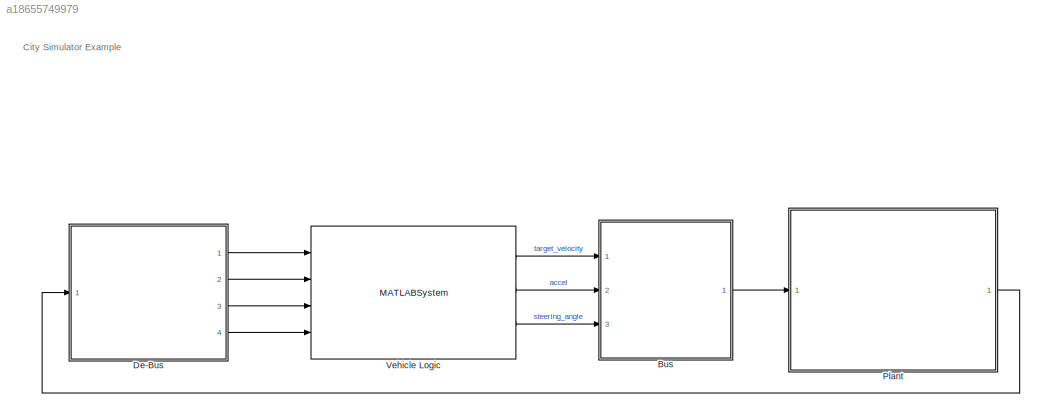
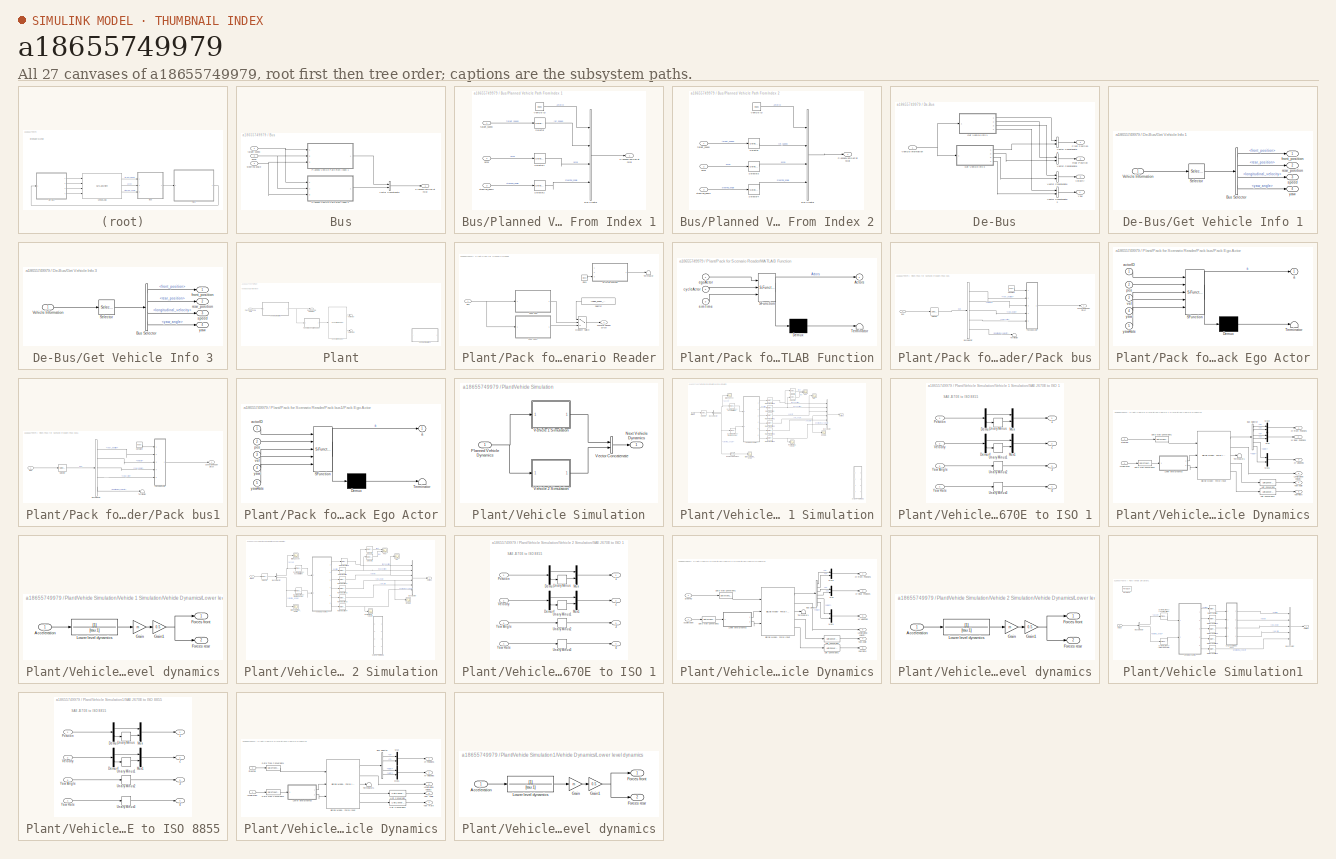
[diagram: thumbnail index - all 27 canvases of the model, root first then tree order]
MODEL slx_a18655749979
KIND model
CONFIG AbsTol = auto
CONFIG EnableMultiTasking = off
CONFIG FixedStep = Ts
CONFIG MaxStep = auto
CONFIG MinStep = auto
CONFIG PostLoadFcn = init
CONFIG RelTol = 1e-3
CONFIG SampleTimeConstraint = Unconstrained
CONFIG Solver = FixedStepAuto
CONFIG SolverName = FixedStepAuto
CONFIG StartTime = 0.0
CONFIG StopTime = simStopTime
BLOCK [SubSystem] Bus
  Ports = [3, 1]
  RequestExecContextInheritance = off
BLOCK [SubSystem] Bus/Planned Vehicle Path From Index 1
  Ports = [3, 1]
  RequestExecContextInheritance = off
BLOCK [BusCreator] Bus/Planned Vehicle Path From Index 1/Bus Creator
  DisplayOption = bar
  InheritFromInputs = on
  Inputs = 4
  NonVirtualBus = on
  OutDataTypeStr = Bus: PlannedVehicleDynamics
  Ports = [4, 1]
BLOCK [Outport] Bus/Planned Vehicle Path From Index 1/PlannedVehiclePathObj
  IconDisplay = Port number
BLOCK [Selector] Bus/Planned Vehicle Path From Index 1/Selector
  IndexOptions = Index vector (dialog),Index vector (dialog)
  Indices = index,1
  InputPortWidth = size
  NumberOfDimensions = 2
  OutputSizes = 1,1
  Ports = [1, 1]
BLOCK [Selector] Bus/Planned Vehicle Path From Index 1/Selector1
  IndexOptions = Index vector (dialog),Index vector (dialog)
  Indices = index,1
  InputPortWidth = size
  NumberOfDimensions = 2
  OutputSizes = 1,1
  Ports = [1, 1]
BLOCK [Selector] Bus/Planned Vehicle Path From Index 1/Selector2
  IndexOptions = Index vector (dialog),Index vector (dialog)
  Indices = index,1
  InputPortWidth = size
  NumberOfDimensions = 2
  OutputSizes = 1,1
  Ports = [1, 1]
BLOCK [Constant] Bus/Planned Vehicle Path From Index 1/Vehicle ID
  Value = index
BLOCK [Inport] Bus/Planned Vehicle Path From Index 1/accel
  IconDisplay = Port number
  Port = 2
BLOCK [Inport] Bus/Planned Vehicle Path From Index 1/steering_angle
  IconDisplay = Port number
  Port = 3
BLOCK [Inport] Bus/Planned Vehicle Path From Index 1/target_speed
  IconDisplay = Port number
BLOCK [SubSystem] Bus/Planned Vehicle Path From Index 2
  Ports = [3, 1]
  RequestExecContextInheritance = off
BLOCK [BusCreator] Bus/Planned Vehicle Path From Index 2/Bus Creator
  DisplayOption = bar
  InheritFromInputs = on
  Inputs = 4
  NonVirtualBus = on
  OutDataTypeStr = Bus: PlannedVehicleDynamics
  Ports = [4, 1]
BLOCK [Outport] Bus/Planned Vehicle Path From Index 2/PlannedVehiclePathObj
  IconDisplay = Port number
BLOCK [Selector] Bus/Planned Vehicle Path From Index 2/Selector
  IndexOptions = Index vector (dialog)
  Indices = index
  InputPortWidth = size
  OutputSizes = 1
  Ports = [1, 1]
BLOCK [Selector] Bus/Planned Vehicle Path From Index 2/Selector3
  IndexOptions = Index vector (dialog)
  Indices = index
  InputPortWidth = size
  OutputSizes = 1
  Ports = [1, 1]
BLOCK [Selector] Bus/Planned Vehicle Path From Index 2/Selector4
  IndexOptions = Index vector (dialog)
  Indices = index
  InputPortWidth = size
  OutputSizes = 1
  Ports = [1, 1]
BLOCK [Constant] Bus/Planned Vehicle Path From Index 2/Vehicle ID
  Value = index
BLOCK [Inport] Bus/Planned Vehicle Path From Index 2/accel
  IconDisplay = Port number
  Port = 2
BLOCK [Inport] Bus/Planned Vehicle Path From Index 2/steering_angle
  IconDisplay = Port number
  Port = 3
BLOCK [Inport] Bus/Planned Vehicle Path From Index 2/target_speed
  IconDisplay = Port number
BLOCK [Outport] Bus/PlannedVehiclePathObj
  IconDisplay = Port number
  OutDataTypeStr = Bus: PlannedVehicleDynamics
BLOCK [Concatenate] Bus/Vector Concatenate
  Ports = [2, 1]
BLOCK [Inport] Bus/accel
  IconDisplay = Port number
  OutDataTypeStr = double
  Port = 2
BLOCK [Inport] Bus/steering angle
  IconDisplay = Port number
  OutDataTypeStr = double
  Port = 3
BLOCK [Inport] Bus/target speed
  IconDisplay = Port number
  OutDataTypeStr = double
BLOCK [SubSystem] De-Bus
  Ports = [1, 4]
  RequestExecContextInheritance = off
BLOCK [Outport] De-Bus/Front Position
  IconDisplay = Port number
BLOCK [SubSystem] De-Bus/Get Vehicle Info 1
  Ports = [1, 4]
  RequestExecContextInheritance = off
BLOCK [BusSelector] De-Bus/Get Vehicle Info 1/Bus Selector
  OutputAsBus = off
  OutputSignals = front_position,rear_position,longitudinal_velocity,yaw_angle
  Ports = [1, 4]
BLOCK [Selector] De-Bus/Get Vehicle Info 1/Selector
  IndexOptions = Index vector (dialog)
  Indices = [index]
  InputPortWidth = size
  OutputSizes = 1
  Ports = [1, 1]
BLOCK [Inport] De-Bus/Get Vehicle Info 1/Vehicle Information
  IconDisplay = Port number
  OutDataTypeStr = Bus: NextVehicleDynamics
BLOCK [Outport] De-Bus/Get Vehicle Info 1/front_position
  IconDisplay = Port number
BLOCK [Outport] De-Bus/Get Vehicle Info 1/rear_position
  IconDisplay = Port number
  Port = 2
BLOCK [Outport] De-Bus/Get Vehicle Info 1/speed
  IconDisplay = Port number
  Port = 3
BLOCK [Outport] De-Bus/Get Vehicle Info 1/yaw
  IconDisplay = Port number
  Port = 4
BLOCK [SubSystem] De-Bus/Get Vehicle Info 3
  Ports = [1, 4]
  RequestExecContextInheritance = off
BLOCK [BusSelector] De-Bus/Get Vehicle Info 3/Bus Selector
  OutputAsBus = off
  OutputSignals = front_position,rear_position,longitudinal_velocity,yaw_angle
  Ports = [1, 4]
BLOCK [Selector] De-Bus/Get Vehicle Info 3/Selector
  IndexOptions = Index vector (dialog)
  Indices = [index]
  InputPortWidth = size
  OutputSizes = 1
  Ports = [1, 1]
BLOCK [Inport] De-Bus/Get Vehicle Info 3/Vehicle Information
  IconDisplay = Port number
  OutDataTypeStr = Bus: NextVehicleDynamics
BLOCK [Outport] De-Bus/Get Vehicle Info 3/front_position
  IconDisplay = Port number
BLOCK [Outport] De-Bus/Get Vehicle Info 3/rear_position
  IconDisplay = Port number
  Port = 2
BLOCK [Outport] De-Bus/Get Vehicle Info 3/speed
  IconDisplay = Port number
  Port = 3
BLOCK [Outport] De-Bus/Get Vehicle Info 3/yaw
  IconDisplay = Port number
  Port = 4
BLOCK [Outport] De-Bus/Rear Position
  IconDisplay = Port number
  Port = 2
BLOCK [Concatenate] De-Bus/Vector Concatenate
  Ports = [2, 1]
BLOCK [Concatenate] De-Bus/Vector Concatenate1
  Ports = [2, 1]
BLOCK [Concatenate] De-Bus/Vector Concatenate2
  Ports = [2, 1]
BLOCK [Concatenate] De-Bus/Vector Concatenate3
  Ports = [2, 1]
BLOCK [Inport] De-Bus/Vehicle Information
  IconDisplay = Port number
BLOCK [Outport] De-Bus/Velocity
  IconDisplay = Port number
  Port = 3
BLOCK [Outport] De-Bus/Yaw
  IconDisplay = Port number
  Port = 4
BLOCK [SubSystem] Plant
  Ports = [1, 1]
  RequestExecContextInheritance = off
BLOCK [SubSystem] Plant/Pack for Scenario Reader
  Ports = [1, 1]
  RequestExecContextInheritance = off
BLOCK [Inport] Plant/Pack for Scenario Reader/Bus
  IconDisplay = Port number
BLOCK [Clock] Plant/Pack for Scenario Reader/Clock
  Commented = on
BLOCK [SubSystem] Plant/Pack for Scenario Reader/MATLAB Function
  Commented = on
  ErrorFcn = Stateflow.Translate.translate
  PermitHierarchicalResolution = ExplicitOnly
  Ports = [3, 1]
  RequestExecContextInheritance = off
  SFBlockType = MATLAB Function
  TreatAsAtomicUnit = on
BLOCK [Demux] Plant/Pack for Scenario Reader/MATLAB Function/ Demux 
  Outputs = 1
  Ports = [1, 1]
BLOCK [S-Function] Plant/Pack for Scenario Reader/MATLAB Function/ SFunction 
  EnableBusSupport = on
  FunctionName = sf_sfun
  PortCounts = [3 2]
  Ports = [3, 2]
  SFcnIsStateOwnerBlock = off
  SFunctionDeploymentMode = off
  Tag = Stateflow S-Function 6
BLOCK [Terminator] Plant/Pack for Scenario Reader/MATLAB Function/ Terminator 
BLOCK [Outport] Plant/Pack for Scenario Reader/MATLAB Function/Actors
  IconDisplay = Port number
BLOCK [Inport] Plant/Pack for Scenario Reader/MATLAB Function/cycleActor
  IconDisplay = Port number
  Port = 2
BLOCK [Inport] Plant/Pack for Scenario Reader/MATLAB Function/egoActor
  IconDisplay = Port number
BLOCK [Inport] Plant/Pack for Scenario Reader/MATLAB Function/simTime
  IconDisplay = Port number
  Port = 3
BLOCK [MultiPortSwitch] Plant/Pack for Scenario Reader/Multiport Switch
  InputSameDT = off
  Inputs = 2
  Ports = [3, 1]
  SaturateOnIntegerOverflow = off
BLOCK [SubSystem] Plant/Pack for Scenario Reader/Pack bus
  Ports = [1, 1]
  RequestExecContextInheritance = off
BLOCK [Inport] Plant/Pack for Scenario Reader/Pack bus/Bus
  IconDisplay = Port number
BLOCK [BusSelector] Plant/Pack for Scenario Reader/Pack bus/Bus Selector
  OutputAsBus = off
  OutputSignals = rear_position,velocity,yaw_angle,yaw_rate,longitudinal_velocity
  Ports = [1, 5]
BLOCK [Constant] Plant/Pack for Scenario Reader/Pack bus/Constant
  Value = index
BLOCK [SubSystem] Plant/Pack for Scenario Reader/Pack bus/Pack Ego Actor
  ErrorFcn = Stateflow.Translate.translate
  PermitHierarchicalResolution = ExplicitOnly
  Ports = [5, 1]
  RequestExecContextInheritance = off
  SFBlockType = MATLAB Function
  SystemSampleTime = Ts
  TreatAsAtomicUnit = on
BLOCK [Demux] Plant/Pack for Scenario Reader/Pack bus/Pack Ego Actor/ Demux 
  Outputs = 1
  Ports = [1, 1]
BLOCK [S-Function] Plant/Pack for Scenario Reader/Pack bus/Pack Ego Actor/ SFunction 
  EnableBusSupport = on
  FunctionName = sf_sfun
  PortCounts = [5 2]
  Ports = [5, 2]
  SFcnIsStateOwnerBlock = off
  SFunctionDeploymentMode = off
  Tag = Stateflow S-Function 5
BLOCK [Terminator] Plant/Pack for Scenario Reader/Pack bus/Pack Ego Actor/ Terminator 
BLOCK [Outport] Plant/Pack for Scenario Reader/Pack bus/Pack Ego Actor/a
  IconDisplay = Port number
  VectorParamsAs1DForOutWhenUnconnected = off
BLOCK [Inport] Plant/Pack for Scenario Reader/Pack bus/Pack Ego Actor/actorID
  IconDisplay = Port number
BLOCK [Inport] Plant/Pack for Scenario Reader/Pack bus/Pack Ego Actor/pos
  IconDisplay = Port number
  Port = 2
BLOCK [Inport] Plant/Pack for Scenario Reader/Pack bus/Pack Ego Actor/vel
  IconDisplay = Port number
  Port = 3
BLOCK [Inport] Plant/Pack for Scenario Reader/Pack bus/Pack Ego Actor/yaw
  IconDisplay = Port number
  Port = 4
BLOCK [Inport] Plant/Pack for Scenario Reader/Pack bus/Pack Ego Actor/yawRate
  IconDisplay = Port number
  Port = 5
BLOCK [Outport] Plant/Pack for Scenario Reader/Pack bus/Scenario Reader Struct
  IconDisplay = Port number
BLOCK [Selector] Plant/Pack for Scenario Reader/Pack bus/Selector
  IndexOptions = Index vector (dialog)
  Indices = index
  InputPortWidth = size
  OutputSizes = 1
  Ports = [1, 1]
BLOCK [Terminator] Plant/Pack for Scenario Reader/Pack bus/Terminator
BLOCK [SubSystem] Plant/Pack for Scenario Reader/Pack bus1
  Ports = [1, 1]
  RequestExecContextInheritance = off
BLOCK [Inport] Plant/Pack for Scenario Reader/Pack bus1/Bus
  IconDisplay = Port number
BLOCK [BusSelector] Plant/Pack for Scenario Reader/Pack bus1/Bus Selector
  OutputAsBus = off
  OutputSignals = rear_position,velocity,yaw_angle,yaw_rate,longitudinal_velocity
  Ports = [1, 5]
BLOCK [Constant] Plant/Pack for Scenario Reader/Pack bus1/Constant
  Value = index
BLOCK [SubSystem] Plant/Pack for Scenario Reader/Pack bus1/Pack Ego Actor
  ErrorFcn = Stateflow.Translate.translate
  PermitHierarchicalResolution = ExplicitOnly
  Ports = [5, 1]
  RequestExecContextInheritance = off
  SFBlockType = MATLAB Function
  SystemSampleTime = Ts
  TreatAsAtomicUnit = on
BLOCK [Demux] Plant/Pack for Scenario Reader/Pack bus1/Pack Ego Actor/ Demux 
  Outputs = 1
  Ports = [1, 1]
BLOCK [S-Function] Plant/Pack for Scenario Reader/Pack bus1/Pack Ego Actor/ SFunction 
  EnableBusSupport = on
  FunctionName = sf_sfun
  PortCounts = [5 2]
  Ports = [5, 2]
  SFcnIsStateOwnerBlock = off
  SFunctionDeploymentMode = off
  Tag = Stateflow S-Function 4
BLOCK [Terminator] Plant/Pack for Scenario Reader/Pack bus1/Pack Ego Actor/ Terminator 
BLOCK [Outport] Plant/Pack for Scenario Reader/Pack bus1/Pack Ego Actor/a
  IconDisplay = Port number
  VectorParamsAs1DForOutWhenUnconnected = off
BLOCK [Inport] Plant/Pack for Scenario Reader/Pack bus1/Pack Ego Actor/actorID
  IconDisplay = Port number
BLOCK [Inport] Plant/Pack for Scenario Reader/Pack bus1/Pack Ego Actor/pos
  IconDisplay = Port number
  Port = 2
BLOCK [Inport] Plant/Pack for Scenario Reader/Pack bus1/Pack Ego Actor/vel
  IconDisplay = Port number
  Port = 3
BLOCK [Inport] Plant/Pack for Scenario Reader/Pack bus1/Pack Ego Actor/yaw
  IconDisplay = Port number
  Port = 4
BLOCK [Inport] Plant/Pack for Scenario Reader/Pack bus1/Pack Ego Actor/yawRate
  IconDisplay = Port number
  Port = 5
BLOCK [Outport] Plant/Pack for Scenario Reader/Pack bus1/Scenario Reader Struct
  IconDisplay = Port number
BLOCK [Selector] Plant/Pack for Scenario Reader/Pack bus1/Selector
  IndexOptions = Index vector (dialog)
  Indices = index
  InputPortWidth = size
  OutputSizes = 1
  Ports = [1, 1]
BLOCK [Terminator] Plant/Pack for Scenario Reader/Pack bus1/Terminator
BLOCK [Outport] Plant/Pack for Scenario Reader/Scenario Reader Struct
  IconDisplay = Port number
BLOCK [Constant] Plant/Pack for Scenario Reader/Selector
  Value = index_show_car
BLOCK [Terminator] Plant/Pack for Scenario Reader/Terminator
  Commented = on
BLOCK [Inport] Plant/Planned Vehicle Path
  IconDisplay = Port number
  OutDataTypeStr = Bus: PlannedVehicleDynamics
  SampleTime = Ts
BLOCK [Outport] Plant/Read Vehicle Information
  IconDisplay = Port number
  SampleTime = Ts
BLOCK [Reference] Plant/Scenario Reader  REF=drivingscenarioandsensors/Scenario Reader
  Ports = [1, 2]
  SourceBlock = drivingscenarioandsensors/Scenario Reader
  SourceProductBaseCode = DR
  SourceProductName = Automated Driving Toolbox
  SourceType = driving.scenario.internal.ScenarioReader
BLOCK [Terminator] Plant/Terminator
BLOCK [Terminator] Plant/Terminator1
BLOCK [SubSystem] Plant/Vehicle Simulation
  Ports = [1, 1]
  RequestExecContextInheritance = off
BLOCK [Outport] Plant/Vehicle Simulation/Next Vehicle Dynamics
  IconDisplay = Port number
BLOCK [Inport] Plant/Vehicle Simulation/Planned Vehicle Dynamics
  IconDisplay = Port number
BLOCK [Concatenate] Plant/Vehicle Simulation/Vector Concatenate
  Ports = [2, 1]
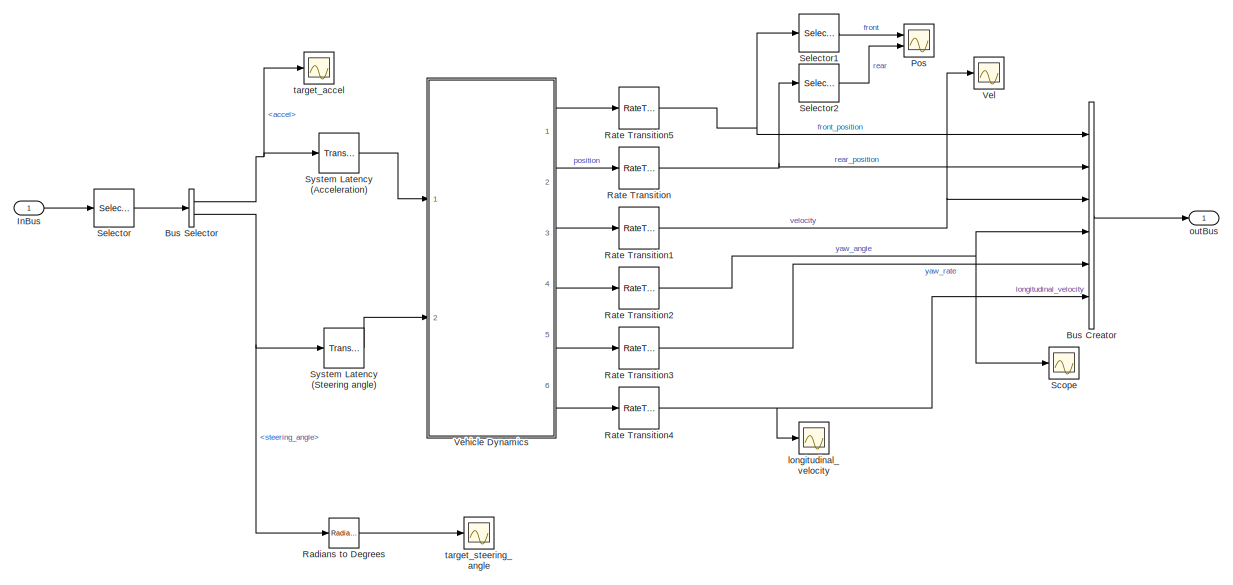
[diagram: Plant/Vehicle Simulation/Vehicle 1 Simulation - part 1/2, full width, middle band]
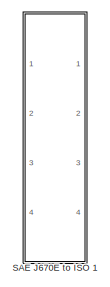
[diagram: Plant/Vehicle Simulation/Vehicle 1 Simulation - part 2/2, bottom right region]
BLOCK [SubSystem] Plant/Vehicle Simulation/Vehicle 1 Simulation
  Ports = [1, 1]
  RequestExecContextInheritance = off
BLOCK [BusCreator] Plant/Vehicle Simulation/Vehicle 1 Simulation/Bus Creator
  DisplayOption = bar
  InheritFromInputs = on
  Inputs = 6
  NonVirtualBus = on
  OutDataTypeStr = Bus: NextVehicleDynamics
  Ports = [6, 1]
BLOCK [BusSelector] Plant/Vehicle Simulation/Vehicle 1 Simulation/Bus Selector
  OutputAsBus = off
  OutputSignals = accel,steering_angle
  Ports = [1, 2]
BLOCK [Inport] Plant/Vehicle Simulation/Vehicle 1 Simulation/InBus
  IconDisplay = Port number
  OutDataTypeStr = Bus: PlannedVehicleDynamics
  PortDimensions = 1
  SampleTime = Ts
BLOCK [Scope] Plant/Vehicle Simulation/Vehicle 1 Simulation/Pos
  Floating = off
  NumInputPorts = 2
  Ports = [2]
  ScopeSpecificationString = Simulink.scopes.TimeScopeBlockCfg('CurrentConfiguration', extmgr.ConfigurationSet(extmgr.Configuration('Core','General UI',true),extmgr.Configuration('Core','Source UI',true),extmgr.Configuration('Sources','WiredSimulink',true,'DataLoggingVariableName','ScopeData2'),extmgr.Configuration('Visuals','Time Domain',true,'SerializedDisplays',{struct('MinYLimReal','0.02665','MaxYLimReal','45.76017','YLab...<+1371ch>
BLOCK [Reference] Plant/Vehicle Simulation/Vehicle 1 Simulation/Radians to Degrees  REF=simulink_extras/Transformations/Radians
to Degrees
  Ports = [1, 1]
  SourceBlock = simulink_extras/Transformations/Radians\nto Degrees
  SourceProductBaseCode = SL
  SourceProductName = Simulink
  SourceType = RadiansToDegrees
BLOCK [RateTransition] Plant/Vehicle Simulation/Vehicle 1 Simulation/Rate Transition
  OutPortSampleTime = Ts
BLOCK [RateTransition] Plant/Vehicle Simulation/Vehicle 1 Simulation/Rate Transition1
  OutPortSampleTime = Ts
BLOCK [RateTransition] Plant/Vehicle Simulation/Vehicle 1 Simulation/Rate Transition2
  OutPortSampleTime = Ts
BLOCK [RateTransition] Plant/Vehicle Simulation/Vehicle 1 Simulation/Rate Transition3
  OutPortSampleTime = Ts
BLOCK [RateTransition] Plant/Vehicle Simulation/Vehicle 1 Simulation/Rate Transition4
  OutPortSampleTime = Ts
BLOCK [RateTransition] Plant/Vehicle Simulation/Vehicle 1 Simulation/Rate Transition5
  OutPortSampleTime = Ts
BLOCK [SubSystem] Plant/Vehicle Simulation/Vehicle 1 Simulation/SAE J670E to ISO 1
  Commented = on
  Ports = [4, 4]
  RequestExecContextInheritance = off
BLOCK [Outport] Plant/Vehicle Simulation/Vehicle 1 Simulation/SAE J670E to ISO 1/1
  IconDisplay = Port number
  OutDataTypeStr = double
  VectorParamsAs1DForOutWhenUnconnected = off
BLOCK [Outport] Plant/Vehicle Simulation/Vehicle 1 Simulation/SAE J670E to ISO 1/2
  IconDisplay = Port number
  OutDataTypeStr = double
  Port = 2
  VectorParamsAs1DForOutWhenUnconnected = off
BLOCK [Outport] Plant/Vehicle Simulation/Vehicle 1 Simulation/SAE J670E to ISO 1/3
  IconDisplay = Port number
  OutDataTypeStr = double
  Port = 3
  PortDimensions = 1
  VectorParamsAs1DForOutWhenUnconnected = off
BLOCK [Outport] Plant/Vehicle Simulation/Vehicle 1 Simulation/SAE J670E to ISO 1/4
  IconDisplay = Port number
  OutDataTypeStr = double
  Port = 4
  PortDimensions = 1
  VectorParamsAs1DForOutWhenUnconnected = off
BLOCK [Demux] Plant/Vehicle Simulation/Vehicle 1 Simulation/SAE J670E to ISO 1/Demux
  DisplayOption = bar
  Outputs = 2
  Ports = [1, 2]
BLOCK [Demux] Plant/Vehicle Simulation/Vehicle 1 Simulation/SAE J670E to ISO 1/Demux1
  DisplayOption = bar
  Outputs = 2
  Ports = [1, 2]
BLOCK [Mux] Plant/Vehicle Simulation/Vehicle 1 Simulation/SAE J670E to ISO 1/Mux
  DisplayOption = bar
  Inputs = 2
  Ports = [2, 1]
BLOCK [Mux] Plant/Vehicle Simulation/Vehicle 1 Simulation/SAE J670E to ISO 1/Mux1
  DisplayOption = bar
  Inputs = 2
  Ports = [2, 1]
BLOCK [Inport] Plant/Vehicle Simulation/Vehicle 1 Simulation/SAE J670E to ISO 1/Position
  IconDisplay = Port number
  OutDataTypeStr = double
  Unit = m
BLOCK [UnaryMinus] Plant/Vehicle Simulation/Vehicle 1 Simulation/SAE J670E to ISO 1/Unary Minus
BLOCK [UnaryMinus] Plant/Vehicle Simulation/Vehicle 1 Simulation/SAE J670E to ISO 1/Unary Minus1
BLOCK [UnaryMinus] Plant/Vehicle Simulation/Vehicle 1 Simulation/SAE J670E to ISO 1/Unary Minus2
BLOCK [UnaryMinus] Plant/Vehicle Simulation/Vehicle 1 Simulation/SAE J670E to ISO 1/Unary Minus3
BLOCK [Inport] Plant/Vehicle Simulation/Vehicle 1 Simulation/SAE J670E to ISO 1/Velocity
  IconDisplay = Port number
  OutDataTypeStr = double
  Port = 2
  Unit = m/s
BLOCK [Inport] Plant/Vehicle Simulation/Vehicle 1 Simulation/SAE J670E to ISO 1/Yaw Angle
  IconDisplay = Port number
  OutDataTypeStr = double
  Port = 3
  Unit = deg
BLOCK [Inport] Plant/Vehicle Simulation/Vehicle 1 Simulation/SAE J670E to ISO 1/Yaw Rate
  IconDisplay = Port number
  OutDataTypeStr = double
  Port = 4
  Unit = deg/s
BLOCK [Scope] Plant/Vehicle Simulation/Vehicle 1 Simulation/Scope
  Floating = off
  NumInputPorts = 1
  Ports = [1]
  ScopeSpecificationString = Simulink.scopes.TimeScopeBlockCfg('CurrentConfiguration', extmgr.ConfigurationSet(extmgr.Configuration('Core','General UI',true),extmgr.Configuration('Core','Source UI',true),extmgr.Configuration('Sources','WiredSimulink',true,'DataLoggingVariableName','ScopeData1'),extmgr.Configuration('Visuals','Time Domain',true,'SerializedDisplays',{struct('MinYLimReal','-18.30307','MaxYLimReal','111.27731','Y...<+1408ch>
BLOCK [Selector] Plant/Vehicle Simulation/Vehicle 1 Simulation/Selector
  IndexOptions = Index vector (dialog)
  Indices = index
  InputPortWidth = size
  OutputSizes = 1
  Ports = [1, 1]
BLOCK [Selector] Plant/Vehicle Simulation/Vehicle 1 Simulation/Selector1
  IndexOptions = Index vector (dialog)
  Indices = 2
  InputPortWidth = 2
  OutputSizes = 1
  Ports = [1, 1]
BLOCK [Selector] Plant/Vehicle Simulation/Vehicle 1 Simulation/Selector2
  IndexOptions = Index vector (dialog)
  Indices = 2
  InputPortWidth = 2
  OutputSizes = 1
  Ports = [1, 1]
BLOCK [TransportDelay] Plant/Vehicle Simulation/Vehicle 1 Simulation/System Latency (Acceleration)
  DelayTime = Ts
  Ports = [1, 1]
BLOCK [TransportDelay] Plant/Vehicle Simulation/Vehicle 1 Simulation/System Latency (Steering angle)
  DelayTime = Ts
  Ports = [1, 1]
BLOCK [SubSystem] Plant/Vehicle Simulation/Vehicle 1 Simulation/Vehicle Dynamics
  Ports = [2, 6]
  RequestExecContextInheritance = off
  VariantControl = Variant2
BLOCK [Inport] Plant/Vehicle Simulation/Vehicle 1 Simulation/Vehicle Dynamics/Acceleration
  IconDisplay = Port number
  Unit = m/s^2
BLOCK [Reference] Plant/Vehicle Simulation/Vehicle 1 Simulation/Vehicle Dynamics/Bicycle Model - Force Input  REF=autolibshared/Bicycle Model - Force Input
  Ports = [3, 5]
  SourceBlock = autolibshared/Bicycle Model - Force Input
  SourceProductBaseCode = PW
  SourceProductName = Powertrain Blockset
  SourceType = Vehicle Body 3DOF Lateral
BLOCK [BusSelector] Plant/Vehicle Simulation/Vehicle 1 Simulation/Vehicle Dynamics/Bus Selector
  OutputAsBus = off
  OutputSignals = InertFrm.FrntAxl.Disp.X,InertFrm.FrntAxl.Disp.Y,InertFrm.RearAxl.Disp.X,InertFrm.RearAxl.Disp.Y,InertFrm.FrntAxl.Vel.Xdot,InertFrm.FrntAxl.Vel.Ydot
  Ports = [1, 6]
BLOCK [DataTypeConversion] Plant/Vehicle Simulation/Vehicle 1 Simulation/Vehicle Dynamics/Data Type Conversion1
  RndMeth = Floor
  SaturateOnIntegerOverflow = off
BLOCK [DataTypeConversion] Plant/Vehicle Simulation/Vehicle 1 Simulation/Vehicle Dynamics/Data Type Conversion2
  RndMeth = Floor
  SaturateOnIntegerOverflow = off
BLOCK [Outport] Plant/Vehicle Simulation/Vehicle 1 Simulation/Vehicle Dynamics/Longitudinal velocity
  IconDisplay = Port number
  Port = 6
  VectorParamsAs1DForOutWhenUnconnected = off
BLOCK [SubSystem] Plant/Vehicle Simulation/Vehicle 1 Simulation/Vehicle Dynamics/Lower level dynamics
  Ports = [1, 2]
  RequestExecContextInheritance = off
BLOCK [Inport] Plant/Vehicle Simulation/Vehicle 1 Simulation/Vehicle Dynamics/Lower level dynamics/Acceleration
  IconDisplay = Port number
BLOCK [Outport] Plant/Vehicle Simulation/Vehicle 1 Simulation/Vehicle Dynamics/Lower level dynamics/Forces front
  IconDisplay = Port number
  VectorParamsAs1DForOutWhenUnconnected = off
BLOCK [Outport] Plant/Vehicle Simulation/Vehicle 1 Simulation/Vehicle Dynamics/Lower level dynamics/Forces rear
  IconDisplay = Port number
  Port = 2
  VectorParamsAs1DForOutWhenUnconnected = off
BLOCK [Gain] Plant/Vehicle Simulation/Vehicle 1 Simulation/Vehicle Dynamics/Lower level dynamics/Gain
  Gain = m
  OutDataTypeStr = Inherit: Inherit via internal rule
  ParamDataTypeStr = Inherit: Inherit via internal rule
  SaturateOnIntegerOverflow = off
BLOCK [Gain] Plant/Vehicle Simulation/Vehicle 1 Simulation/Vehicle Dynamics/Lower level dynamics/Gain1
  Gain = 0.5
  OutDataTypeStr = Inherit: Inherit via internal rule
  ParamDataTypeStr = Inherit: Inherit via internal rule
  SaturateOnIntegerOverflow = off
BLOCK [TransferFcn] Plant/Vehicle Simulation/Vehicle 1 Simulation/Vehicle Dynamics/Lower level dynamics/Lower level dynamics
  Denominator = [tau 1]
BLOCK [Mux] Plant/Vehicle Simulation/Vehicle 1 Simulation/Vehicle Dynamics/Mux
  DisplayOption = bar
  Inputs = 2
  Ports = [2, 1]
BLOCK [Mux] Plant/Vehicle Simulation/Vehicle 1 Simulation/Vehicle Dynamics/Mux1
  DisplayOption = bar
  Inputs = 2
  Ports = [2, 1]
BLOCK [Mux] Plant/Vehicle Simulation/Vehicle 1 Simulation/Vehicle Dynamics/Mux2
  DisplayOption = bar
  Inputs = 2
  Ports = [2, 1]
BLOCK [Inport] Plant/Vehicle Simulation/Vehicle 1 Simulation/Vehicle Dynamics/Steering
  IconDisplay = Port number
  Port = 2
  Unit = rad
BLOCK [Terminator] Plant/Vehicle Simulation/Vehicle 1 Simulation/Vehicle Dynamics/Terminator1
BLOCK [UnitConversion] Plant/Vehicle Simulation/Vehicle 1 Simulation/Vehicle Dynamics/Unit Conversion
  OutputType = Inherit: Inherit via back propagation
BLOCK [UnitConversion] Plant/Vehicle Simulation/Vehicle 1 Simulation/Vehicle Dynamics/Unit Conversion1
  OutputType = Inherit: Inherit via back propagation
BLOCK [Outport] Plant/Vehicle Simulation/Vehicle 1 Simulation/Vehicle Dynamics/XY Front Positions
  IconDisplay = Port number
  Unit = m
  VectorParamsAs1DForOutWhenUnconnected = off
BLOCK [Outport] Plant/Vehicle Simulation/Vehicle 1 Simulation/Vehicle Dynamics/XY Rear Positions
  IconDisplay = Port number
  Port = 2
  Unit = m
  VectorParamsAs1DForOutWhenUnconnected = off
BLOCK [Outport] Plant/Vehicle Simulation/Vehicle 1 Simulation/Vehicle Dynamics/XY Velocities
  IconDisplay = Port number
  Port = 3
  Unit = m/s
  VectorParamsAs1DForOutWhenUnconnected = off
BLOCK [Outport] Plant/Vehicle Simulation/Vehicle 1 Simulation/Vehicle Dynamics/Yaw Angle
  IconDisplay = Port number
  Port = 4
  Unit = deg
  VectorParamsAs1DForOutWhenUnconnected = off
BLOCK [Outport] Plant/Vehicle Simulation/Vehicle 1 Simulation/Vehicle Dynamics/Yaw Rate
  IconDisplay = Port number
  Port = 5
  Unit = degree/s
  VectorParamsAs1DForOutWhenUnconnected = off
BLOCK [Scope] Plant/Vehicle Simulation/Vehicle 1 Simulation/Vel
  Floating = off
  NumInputPorts = 1
  Ports = [1]
  ScopeSpecificationString = Simulink.scopes.TimeScopeBlockCfg('CurrentConfiguration', extmgr.ConfigurationSet(extmgr.Configuration('Core','General UI',true),extmgr.Configuration('Core','Source UI',true),extmgr.Configuration('Sources','WiredSimulink',true,'DataLoggingVariableName','ScopeData3'),extmgr.Configuration('Visuals','Time Domain',true,'SerializedDisplays',{struct('MinYLimReal','-6.16625','MaxYLimReal','14.38426','YLa...<+1386ch>
BLOCK [Scope] Plant/Vehicle Simulation/Vehicle 1 Simulation/longitudinal_velocity
  Floating = off
  NumInputPorts = 1
  Ports = [1]
  ScopeSpecificationString = Simulink.scopes.TimeScopeBlockCfg('CurrentConfiguration', extmgr.ConfigurationSet(extmgr.Configuration('Core','General UI',true),extmgr.Configuration('Core','Source UI',true),extmgr.Configuration('Sources','WiredSimulink',true,'DataLoggingVariableName','ScopeData6'),extmgr.Configuration('Visuals','Time Domain',true,'SerializedDisplays',{struct('MinYLimReal','-4.61891','MaxYLimReal','12.0185','YLab...<+1409ch>
BLOCK [Outport] Plant/Vehicle Simulation/Vehicle 1 Simulation/outBus
  IconDisplay = Port number
  OutDataTypeStr = Bus: NextVehicleDynamics
  SampleTime = Ts
BLOCK [Scope] Plant/Vehicle Simulation/Vehicle 1 Simulation/target_accel
  Floating = off
  NumInputPorts = 1
  Ports = [1]
  ScopeSpecificationString = Simulink.scopes.TimeScopeBlockCfg('CurrentConfiguration', extmgr.ConfigurationSet(extmgr.Configuration('Core','General UI',true),extmgr.Configuration('Core','Source UI',true),extmgr.Configuration('Sources','WiredSimulink',true,'DataLoggingVariableName','ScopeData5'),extmgr.Configuration('Visuals','Time Domain',true,'SerializedDisplays',{struct('MinYLimReal','-10.97953','MaxYLimReal','12.55328','YL...<+1404ch>
BLOCK [Scope] Plant/Vehicle Simulation/Vehicle 1 Simulation/target_steering_angle
  Floating = off
  NumInputPorts = 1
  Ports = [1]
  ScopeSpecificationString = Simulink.scopes.TimeScopeBlockCfg('CurrentConfiguration', extmgr.ConfigurationSet(extmgr.Configuration('Core','General UI',true),extmgr.Configuration('Core','Source UI',true),extmgr.Configuration('Sources','WiredSimulink',true,'DataLoggingVariableName','ScopeData4'),extmgr.Configuration('Visuals','Time Domain',true,'SerializedDisplays',{struct('MinYLimReal','-87.36482','MaxYLimReal','109.72512','Y...<+1415ch>
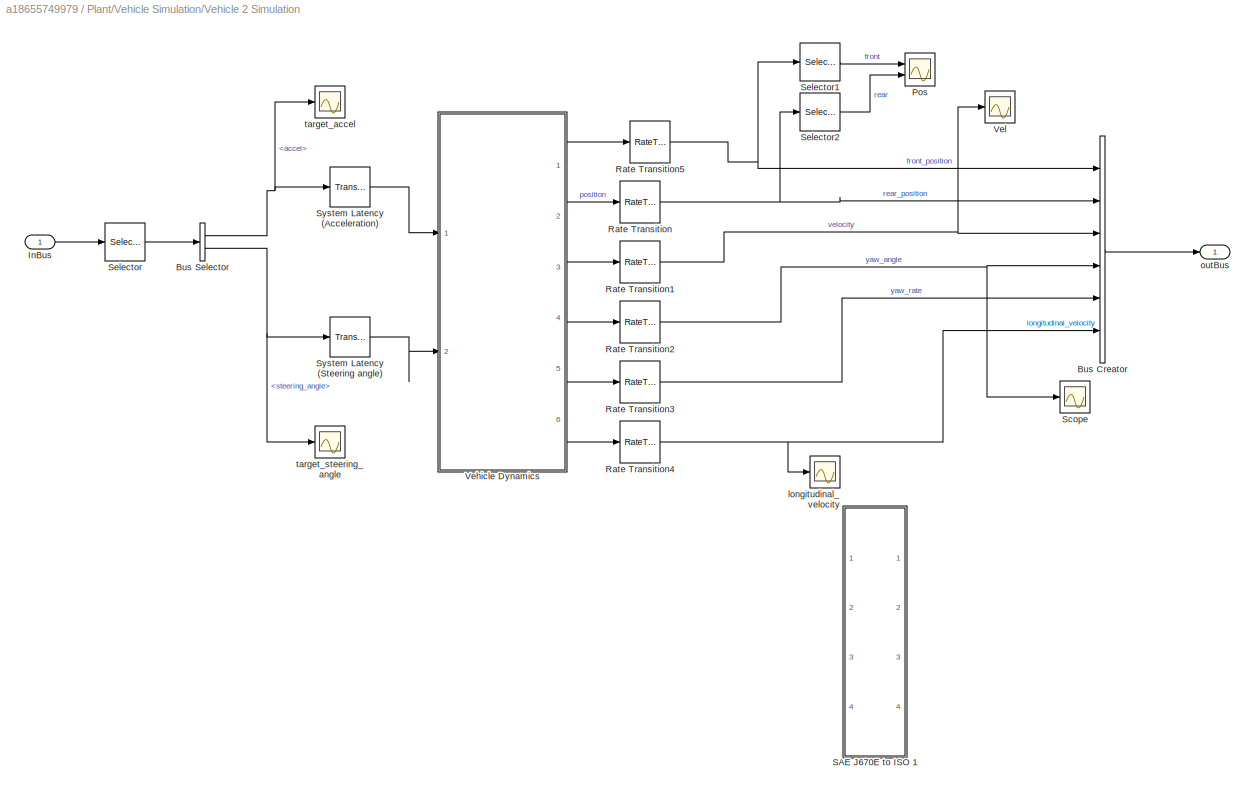
BLOCK [SubSystem] Plant/Vehicle Simulation/Vehicle 2 Simulation
  Ports = [1, 1]
  RequestExecContextInheritance = off
BLOCK [BusCreator] Plant/Vehicle Simulation/Vehicle 2 Simulation/Bus Creator
  DisplayOption = bar
  InheritFromInputs = on
  Inputs = 6
  NonVirtualBus = on
  OutDataTypeStr = Bus: NextVehicleDynamics
  Ports = [6, 1]
BLOCK [BusSelector] Plant/Vehicle Simulation/Vehicle 2 Simulation/Bus Selector
  OutputAsBus = off
  OutputSignals = accel,steering_angle
  Ports = [1, 2]
BLOCK [Inport] Plant/Vehicle Simulation/Vehicle 2 Simulation/InBus
  IconDisplay = Port number
  OutDataTypeStr = Bus: PlannedVehicleDynamics
  PortDimensions = 1
  SampleTime = Ts
BLOCK [Scope] Plant/Vehicle Simulation/Vehicle 2 Simulation/Pos
  Floating = off
  NumInputPorts = 2
  Ports = [2]
  ScopeSpecificationString = Simulink.scopes.TimeScopeBlockCfg('CurrentConfiguration', extmgr.ConfigurationSet(extmgr.Configuration('Core','General UI',true),extmgr.Configuration('Core','Source UI',true),extmgr.Configuration('Sources','WiredSimulink',true,'DataLoggingVariableName','ScopeData1'),extmgr.Configuration('Visuals','Time Domain',true,'SerializedDisplays',{struct('MinYLimReal','48.86717','MaxYLimReal','59.29254','YLa...<+1405ch>
BLOCK [RateTransition] Plant/Vehicle Simulation/Vehicle 2 Simulation/Rate Transition
  OutPortSampleTime = Ts
BLOCK [RateTransition] Plant/Vehicle Simulation/Vehicle 2 Simulation/Rate Transition1
  OutPortSampleTime = Ts
BLOCK [RateTransition] Plant/Vehicle Simulation/Vehicle 2 Simulation/Rate Transition2
  OutPortSampleTime = Ts
BLOCK [RateTransition] Plant/Vehicle Simulation/Vehicle 2 Simulation/Rate Transition3
  OutPortSampleTime = Ts
BLOCK [RateTransition] Plant/Vehicle Simulation/Vehicle 2 Simulation/Rate Transition4
  OutPortSampleTime = Ts
BLOCK [RateTransition] Plant/Vehicle Simulation/Vehicle 2 Simulation/Rate Transition5
  OutPortSampleTime = Ts
BLOCK [SubSystem] Plant/Vehicle Simulation/Vehicle 2 Simulation/SAE J670E to ISO 1
  Commented = on
  Ports = [4, 4]
  RequestExecContextInheritance = off
BLOCK [Outport] Plant/Vehicle Simulation/Vehicle 2 Simulation/SAE J670E to ISO 1/1
  IconDisplay = Port number
  OutDataTypeStr = double
  VectorParamsAs1DForOutWhenUnconnected = off
BLOCK [Outport] Plant/Vehicle Simulation/Vehicle 2 Simulation/SAE J670E to ISO 1/2
  IconDisplay = Port number
  OutDataTypeStr = double
  Port = 2
  VectorParamsAs1DForOutWhenUnconnected = off
BLOCK [Outport] Plant/Vehicle Simulation/Vehicle 2 Simulation/SAE J670E to ISO 1/3
  IconDisplay = Port number
  OutDataTypeStr = double
  Port = 3
  PortDimensions = 1
  VectorParamsAs1DForOutWhenUnconnected = off
BLOCK [Outport] Plant/Vehicle Simulation/Vehicle 2 Simulation/SAE J670E to ISO 1/4
  IconDisplay = Port number
  OutDataTypeStr = double
  Port = 4
  PortDimensions = 1
  VectorParamsAs1DForOutWhenUnconnected = off
BLOCK [Demux] Plant/Vehicle Simulation/Vehicle 2 Simulation/SAE J670E to ISO 1/Demux
  DisplayOption = bar
  Outputs = 2
  Ports = [1, 2]
BLOCK [Demux] Plant/Vehicle Simulation/Vehicle 2 Simulation/SAE J670E to ISO 1/Demux1
  DisplayOption = bar
  Outputs = 2
  Ports = [1, 2]
BLOCK [Mux] Plant/Vehicle Simulation/Vehicle 2 Simulation/SAE J670E to ISO 1/Mux
  DisplayOption = bar
  Inputs = 2
  Ports = [2, 1]
BLOCK [Mux] Plant/Vehicle Simulation/Vehicle 2 Simulation/SAE J670E to ISO 1/Mux1
  DisplayOption = bar
  Inputs = 2
  Ports = [2, 1]
BLOCK [Inport] Plant/Vehicle Simulation/Vehicle 2 Simulation/SAE J670E to ISO 1/Position
  IconDisplay = Port number
  OutDataTypeStr = double
  Unit = m
BLOCK [UnaryMinus] Plant/Vehicle Simulation/Vehicle 2 Simulation/SAE J670E to ISO 1/Unary Minus
BLOCK [UnaryMinus] Plant/Vehicle Simulation/Vehicle 2 Simulation/SAE J670E to ISO 1/Unary Minus1
BLOCK [UnaryMinus] Plant/Vehicle Simulation/Vehicle 2 Simulation/SAE J670E to ISO 1/Unary Minus2
BLOCK [UnaryMinus] Plant/Vehicle Simulation/Vehicle 2 Simulation/SAE J670E to ISO 1/Unary Minus3
BLOCK [Inport] Plant/Vehicle Simulation/Vehicle 2 Simulation/SAE J670E to ISO 1/Velocity
  IconDisplay = Port number
  OutDataTypeStr = double
  Port = 2
  Unit = m/s
BLOCK [Inport] Plant/Vehicle Simulation/Vehicle 2 Simulation/SAE J670E to ISO 1/Yaw Angle
  IconDisplay = Port number
  OutDataTypeStr = double
  Port = 3
  Unit = deg
BLOCK [Inport] Plant/Vehicle Simulation/Vehicle 2 Simulation/SAE J670E to ISO 1/Yaw Rate
  IconDisplay = Port number
  OutDataTypeStr = double
  Port = 4
  Unit = deg/s
BLOCK [Scope] Plant/Vehicle Simulation/Vehicle 2 Simulation/Scope
  Floating = off
  NumInputPorts = 1
  Ports = [1]
  ScopeSpecificationString = Simulink.scopes.TimeScopeBlockCfg('CurrentConfiguration', extmgr.ConfigurationSet(extmgr.Configuration('Core','General UI',true),extmgr.Configuration('Core','Source UI',true),extmgr.Configuration('Sources','WiredSimulink',true,'DataLoggingVariableName','ScopeData1'),extmgr.Configuration('Visuals','Time Domain',true,'SerializedDisplays',{struct('MinYLimReal','6.75313','MaxYLimReal','99.24965','YLab...<+1399ch>
BLOCK [Selector] Plant/Vehicle Simulation/Vehicle 2 Simulation/Selector
  IndexOptions = Index vector (dialog)
  Indices = index
  InputPortWidth = size
  OutputSizes = 1
  Ports = [1, 1]
BLOCK [Selector] Plant/Vehicle Simulation/Vehicle 2 Simulation/Selector1
  IndexOptions = Index vector (dialog)
  Indices = 2
  InputPortWidth = 2
  OutputSizes = 1
  Ports = [1, 1]
BLOCK [Selector] Plant/Vehicle Simulation/Vehicle 2 Simulation/Selector2
  IndexOptions = Index vector (dialog)
  Indices = 2
  InputPortWidth = 2
  OutputSizes = 1
  Ports = [1, 1]
BLOCK [TransportDelay] Plant/Vehicle Simulation/Vehicle 2 Simulation/System Latency (Acceleration)
  DelayTime = Ts
  Ports = [1, 1]
BLOCK [TransportDelay] Plant/Vehicle Simulation/Vehicle 2 Simulation/System Latency (Steering angle)
  DelayTime = Ts
  Ports = [1, 1]
BLOCK [SubSystem] Plant/Vehicle Simulation/Vehicle 2 Simulation/Vehicle Dynamics
  Ports = [2, 6]
  RequestExecContextInheritance = off
  VariantControl = Variant2
BLOCK [Inport] Plant/Vehicle Simulation/Vehicle 2 Simulation/Vehicle Dynamics/Acceleration
  IconDisplay = Port number
  Unit = m/s^2
BLOCK [Reference] Plant/Vehicle Simulation/Vehicle 2 Simulation/Vehicle Dynamics/Bicycle Model - Force Input  REF=autolibshared/Bicycle Model - Force Input
  Ports = [3, 5]
  SourceBlock = autolibshared/Bicycle Model - Force Input
  SourceProductBaseCode = PW
  SourceProductName = Powertrain Blockset
  SourceType = Vehicle Body 3DOF Lateral
BLOCK [BusSelector] Plant/Vehicle Simulation/Vehicle 2 Simulation/Vehicle Dynamics/Bus Selector
  OutputAsBus = off
  OutputSignals = InertFrm.FrntAxl.Disp.X,InertFrm.FrntAxl.Disp.Y,InertFrm.RearAxl.Disp.X,InertFrm.RearAxl.Disp.Y,InertFrm.FrntAxl.Vel.Xdot,InertFrm.FrntAxl.Vel.Ydot
  Ports = [1, 6]
BLOCK [DataTypeConversion] Plant/Vehicle Simulation/Vehicle 2 Simulation/Vehicle Dynamics/Data Type Conversion1
  RndMeth = Floor
  SaturateOnIntegerOverflow = off
BLOCK [DataTypeConversion] Plant/Vehicle Simulation/Vehicle 2 Simulation/Vehicle Dynamics/Data Type Conversion2
  RndMeth = Floor
  SaturateOnIntegerOverflow = off
BLOCK [Outport] Plant/Vehicle Simulation/Vehicle 2 Simulation/Vehicle Dynamics/Longitudinal velocity
  IconDisplay = Port number
  Port = 6
  VectorParamsAs1DForOutWhenUnconnected = off
BLOCK [SubSystem] Plant/Vehicle Simulation/Vehicle 2 Simulation/Vehicle Dynamics/Lower level dynamics
  Ports = [1, 2]
  RequestExecContextInheritance = off
BLOCK [Inport] Plant/Vehicle Simulation/Vehicle 2 Simulation/Vehicle Dynamics/Lower level dynamics/Acceleration
  IconDisplay = Port number
BLOCK [Outport] Plant/Vehicle Simulation/Vehicle 2 Simulation/Vehicle Dynamics/Lower level dynamics/Forces front
  IconDisplay = Port number
  VectorParamsAs1DForOutWhenUnconnected = off
BLOCK [Outport] Plant/Vehicle Simulation/Vehicle 2 Simulation/Vehicle Dynamics/Lower level dynamics/Forces rear
  IconDisplay = Port number
  Port = 2
  VectorParamsAs1DForOutWhenUnconnected = off
BLOCK [Gain] Plant/Vehicle Simulation/Vehicle 2 Simulation/Vehicle Dynamics/Lower level dynamics/Gain
  Gain = m
  OutDataTypeStr = Inherit: Inherit via internal rule
  ParamDataTypeStr = Inherit: Inherit via internal rule
  SaturateOnIntegerOverflow = off
BLOCK [Gain] Plant/Vehicle Simulation/Vehicle 2 Simulation/Vehicle Dynamics/Lower level dynamics/Gain1
  Gain = 0.5
  OutDataTypeStr = Inherit: Inherit via internal rule
  ParamDataTypeStr = Inherit: Inherit via internal rule
  SaturateOnIntegerOverflow = off
BLOCK [TransferFcn] Plant/Vehicle Simulation/Vehicle 2 Simulation/Vehicle Dynamics/Lower level dynamics/Lower level dynamics
  Denominator = [tau 1]
BLOCK [Mux] Plant/Vehicle Simulation/Vehicle 2 Simulation/Vehicle Dynamics/Mux
  DisplayOption = bar
  Inputs = 2
  Ports = [2, 1]
BLOCK [Mux] Plant/Vehicle Simulation/Vehicle 2 Simulation/Vehicle Dynamics/Mux1
  DisplayOption = bar
  Inputs = 2
  Ports = [2, 1]
BLOCK [Mux] Plant/Vehicle Simulation/Vehicle 2 Simulation/Vehicle Dynamics/Mux2
  DisplayOption = bar
  Inputs = 2
  Ports = [2, 1]
BLOCK [Inport] Plant/Vehicle Simulation/Vehicle 2 Simulation/Vehicle Dynamics/Steering
  IconDisplay = Port number
  Port = 2
  Unit = rad
BLOCK [Terminator] Plant/Vehicle Simulation/Vehicle 2 Simulation/Vehicle Dynamics/Terminator1
BLOCK [UnitConversion] Plant/Vehicle Simulation/Vehicle 2 Simulation/Vehicle Dynamics/Unit Conversion
  OutputType = Inherit: Inherit via back propagation
BLOCK [UnitConversion] Plant/Vehicle Simulation/Vehicle 2 Simulation/Vehicle Dynamics/Unit Conversion1
  OutputType = Inherit: Inherit via back propagation
BLOCK [Outport] Plant/Vehicle Simulation/Vehicle 2 Simulation/Vehicle Dynamics/XY Front Positions
  IconDisplay = Port number
  Unit = m
  VectorParamsAs1DForOutWhenUnconnected = off
BLOCK [Outport] Plant/Vehicle Simulation/Vehicle 2 Simulation/Vehicle Dynamics/XY Rear Positions
  IconDisplay = Port number
  Port = 2
  Unit = m
  VectorParamsAs1DForOutWhenUnconnected = off
BLOCK [Outport] Plant/Vehicle Simulation/Vehicle 2 Simulation/Vehicle Dynamics/XY Velocities
  IconDisplay = Port number
  Port = 3
  Unit = m/s
  VectorParamsAs1DForOutWhenUnconnected = off
BLOCK [Outport] Plant/Vehicle Simulation/Vehicle 2 Simulation/Vehicle Dynamics/Yaw Angle
  IconDisplay = Port number
  Port = 4
  Unit = deg
  VectorParamsAs1DForOutWhenUnconnected = off
BLOCK [Outport] Plant/Vehicle Simulation/Vehicle 2 Simulation/Vehicle Dynamics/Yaw Rate
  IconDisplay = Port number
  Port = 5
  Unit = degree/s
  VectorParamsAs1DForOutWhenUnconnected = off
BLOCK [Scope] Plant/Vehicle Simulation/Vehicle 2 Simulation/Vel
  Floating = off
  NumInputPorts = 1
  Ports = [1]
  ScopeSpecificationString = Simulink.scopes.TimeScopeBlockCfg('CurrentConfiguration', extmgr.ConfigurationSet(extmgr.Configuration('Core','General UI',true),extmgr.Configuration('Core','Source UI',true),extmgr.Configuration('Sources','WiredSimulink',true,'DataLoggingVariableName','ScopeData3'),extmgr.Configuration('Visuals','Time Domain',true,'SerializedDisplays',{struct('MinYLimReal','-12.20902','MaxYLimReal','9.94108','YLa...<+1386ch>
BLOCK [Scope] Plant/Vehicle Simulation/Vehicle 2 Simulation/longitudinal_velocity
  Floating = off
  NumInputPorts = 1
  Ports = [1]
  ScopeSpecificationString = Simulink.scopes.TimeScopeBlockCfg('CurrentConfiguration', extmgr.ConfigurationSet(extmgr.Configuration('Core','General UI',true),extmgr.Configuration('Core','Source UI',true),extmgr.Configuration('Sources','WiredSimulink',true,'DataLoggingVariableName','ScopeData6'),extmgr.Configuration('Visuals','Time Domain',true,'SerializedDisplays',{struct('MinYLimReal','-1.21399','MaxYLimReal','9.17021','YLab...<+1409ch>
BLOCK [Outport] Plant/Vehicle Simulation/Vehicle 2 Simulation/outBus
  IconDisplay = Port number
  OutDataTypeStr = Bus: NextVehicleDynamics
  SampleTime = Ts
BLOCK [Scope] Plant/Vehicle Simulation/Vehicle 2 Simulation/target_accel
  Floating = off
  NumInputPorts = 1
  Ports = [1]
  ScopeSpecificationString = Simulink.scopes.TimeScopeBlockCfg('CurrentConfiguration', extmgr.ConfigurationSet(extmgr.Configuration('Core','General UI',true),extmgr.Configuration('Core','Source UI',true),extmgr.Configuration('Sources','WiredSimulink',true,'DataLoggingVariableName','ScopeData5'),extmgr.Configuration('Visuals','Time Domain',true,'SerializedDisplays',{struct('MinYLimReal','-7.28833','MaxYLimReal','8.36537','YLab...<+1394ch>
BLOCK [Scope] Plant/Vehicle Simulation/Vehicle 2 Simulation/target_steering_angle
  Floating = off
  NumInputPorts = 1
  Ports = [1]
  ScopeSpecificationString = Simulink.scopes.TimeScopeBlockCfg('CurrentConfiguration', extmgr.ConfigurationSet(extmgr.Configuration('Core','General UI',true),extmgr.Configuration('Core','Source UI',true),extmgr.Configuration('Sources','WiredSimulink',true,'DataLoggingVariableName','ScopeData4'),extmgr.Configuration('Visuals','Time Domain',true,'SerializedDisplays',{struct('MinYLimReal','-1.38312','MaxYLimReal','1.74921','YLab...<+1405ch>
BLOCK [SubSystem] Plant/Vehicle Simulation1
  Commented = on
  Ports = [1, 1]
  RequestExecContextInheritance = off
  TreatAsAtomicUnit = on
BLOCK [BusCreator] Plant/Vehicle Simulation1/Bus Creator
  DisplayOption = bar
  InheritFromInputs = on
  Inputs = position,velocity,yaw_angle,yaw_rate,longitudinal_velocity
  NonVirtualBus = on
  OutDataTypeStr = Bus: NextVehicleDynamics
  Ports = [5, 1]
BLOCK [BusSelector] Plant/Vehicle Simulation1/Bus Selector
  OutputAsBus = off
  OutputSignals = accel,steering_angle
  Ports = [1, 2]
BLOCK [ForEach] Plant/Vehicle Simulation1/For Each
  DisableCoverage = on
  Ports = []
BLOCK [Inport] Plant/Vehicle Simulation1/InBus
  IconDisplay = Port number
  OutDataTypeStr = Bus: PlannedVehicleDynamics
  Partition = on
  PartitionDimension = 1
  PartitionOffset = 0
  PartitionWidth = 1
  PortDimensions = 1
  SampleTime = Ts
BLOCK [RateTransition] Plant/Vehicle Simulation1/Rate Transition
  OutPortSampleTime = Ts
BLOCK [RateTransition] Plant/Vehicle Simulation1/Rate Transition1
  OutPortSampleTime = Ts
BLOCK [RateTransition] Plant/Vehicle Simulation1/Rate Transition2
  OutPortSampleTime = Ts
BLOCK [RateTransition] Plant/Vehicle Simulation1/Rate Transition3
  OutPortSampleTime = Ts
BLOCK [RateTransition] Plant/Vehicle Simulation1/Rate Transition4
  OutPortSampleTime = Ts
BLOCK [SubSystem] Plant/Vehicle Simulation1/SAE J670E to ISO 8855
  Ports = [4, 4]
  RequestExecContextInheritance = off
BLOCK [Outport] Plant/Vehicle Simulation1/SAE J670E to ISO 8855/1
  IconDisplay = Port number
  OutDataTypeStr = double
  VectorParamsAs1DForOutWhenUnconnected = off
BLOCK [Outport] Plant/Vehicle Simulation1/SAE J670E to ISO 8855/2
  IconDisplay = Port number
  OutDataTypeStr = double
  Port = 2
  VectorParamsAs1DForOutWhenUnconnected = off
BLOCK [Outport] Plant/Vehicle Simulation1/SAE J670E to ISO 8855/3
  IconDisplay = Port number
  OutDataTypeStr = double
  Port = 3
  PortDimensions = 1
  VectorParamsAs1DForOutWhenUnconnected = off
BLOCK [Outport] Plant/Vehicle Simulation1/SAE J670E to ISO 8855/4
  IconDisplay = Port number
  OutDataTypeStr = double
  Port = 4
  PortDimensions = 1
  VectorParamsAs1DForOutWhenUnconnected = off
BLOCK [Demux] Plant/Vehicle Simulation1/SAE J670E to ISO 8855/Demux
  DisplayOption = bar
  Outputs = 2
  Ports = [1, 2]
BLOCK [Demux] Plant/Vehicle Simulation1/SAE J670E to ISO 8855/Demux1
  DisplayOption = bar
  Outputs = 2
  Ports = [1, 2]
BLOCK [Mux] Plant/Vehicle Simulation1/SAE J670E to ISO 8855/Mux
  DisplayOption = bar
  Inputs = 2
  Ports = [2, 1]
BLOCK [Mux] Plant/Vehicle Simulation1/SAE J670E to ISO 8855/Mux1
  DisplayOption = bar
  Inputs = 2
  Ports = [2, 1]
BLOCK [Inport] Plant/Vehicle Simulation1/SAE J670E to ISO 8855/Position
  IconDisplay = Port number
  OutDataTypeStr = double
  Unit = m
BLOCK [UnaryMinus] Plant/Vehicle Simulation1/SAE J670E to ISO 8855/Unary Minus
BLOCK [UnaryMinus] Plant/Vehicle Simulation1/SAE J670E to ISO 8855/Unary Minus1
BLOCK [UnaryMinus] Plant/Vehicle Simulation1/SAE J670E to ISO 8855/Unary Minus2
BLOCK [UnaryMinus] Plant/Vehicle Simulation1/SAE J670E to ISO 8855/Unary Minus3
BLOCK [Inport] Plant/Vehicle Simulation1/SAE J670E to ISO 8855/Velocity
  IconDisplay = Port number
  OutDataTypeStr = double
  Port = 2
  Unit = m/s
BLOCK [Inport] Plant/Vehicle Simulation1/SAE J670E to ISO 8855/Yaw Angle
  IconDisplay = Port number
  OutDataTypeStr = double
  Port = 3
  Unit = deg
BLOCK [Inport] Plant/Vehicle Simulation1/SAE J670E to ISO 8855/Yaw Rate
  IconDisplay = Port number
  OutDataTypeStr = double
  Port = 4
  Unit = deg/s
BLOCK [TransportDelay] Plant/Vehicle Simulation1/System Latency (Acceleration)
  DelayTime = Ts
  Ports = [1, 1]
BLOCK [TransportDelay] Plant/Vehicle Simulation1/System Latency (Steering angle)
  DelayTime = Ts
  Ports = [1, 1]
BLOCK [SubSystem] Plant/Vehicle Simulation1/Vehicle Dynamics
  Ports = [2, 5]
  RequestExecContextInheritance = off
  VariantControl = Variant2
BLOCK [Inport] Plant/Vehicle Simulation1/Vehicle Dynamics/Acceleration
  IconDisplay = Port number
  Unit = m/s^2
BLOCK [Reference] Plant/Vehicle Simulation1/Vehicle Dynamics/Bicycle Model - Force Input  REF=autolibshared/Bicycle Model - Force Input
  Ports = [3, 5]
  SourceBlock = autolibshared/Bicycle Model - Force Input
  SourceProductBaseCode = PW
  SourceProductName = Powertrain Blockset
  SourceType = Vehicle Body 3DOF Lateral
BLOCK [BusSelector] Plant/Vehicle Simulation1/Vehicle Dynamics/Bus Selector
  OutputAsBus = off
  OutputSignals = InertFrm.FrntAxl.Disp.X,InertFrm.FrntAxl.Disp.Y,InertFrm.FrntAxl.Vel.Xdot,InertFrm.FrntAxl.Vel.Ydot
  Ports = [1, 4]
BLOCK [DataTypeConversion] Plant/Vehicle Simulation1/Vehicle Dynamics/Data Type Conversion1
  RndMeth = Floor
  SaturateOnIntegerOverflow = off
BLOCK [DataTypeConversion] Plant/Vehicle Simulation1/Vehicle Dynamics/Data Type Conversion2
  RndMeth = Floor
  SaturateOnIntegerOverflow = off
BLOCK [Outport] Plant/Vehicle Simulation1/Vehicle Dynamics/Longitudinal velocity
  IconDisplay = Port number
  Port = 5
  VectorParamsAs1DForOutWhenUnconnected = off
BLOCK [SubSystem] Plant/Vehicle Simulation1/Vehicle Dynamics/Lower level dynamics
  Ports = [1, 2]
  RequestExecContextInheritance = off
BLOCK [Inport] Plant/Vehicle Simulation1/Vehicle Dynamics/Lower level dynamics/Acceleration
  IconDisplay = Port number
BLOCK [Outport] Plant/Vehicle Simulation1/Vehicle Dynamics/Lower level dynamics/Forces front
  IconDisplay = Port number
  VectorParamsAs1DForOutWhenUnconnected = off
BLOCK [Outport] Plant/Vehicle Simulation1/Vehicle Dynamics/Lower level dynamics/Forces rear
  IconDisplay = Port number
  Port = 2
  VectorParamsAs1DForOutWhenUnconnected = off
BLOCK [Gain] Plant/Vehicle Simulation1/Vehicle Dynamics/Lower level dynamics/Gain
  Gain = m
  OutDataTypeStr = Inherit: Inherit via internal rule
  ParamDataTypeStr = Inherit: Inherit via internal rule
  SaturateOnIntegerOverflow = off
BLOCK [Gain] Plant/Vehicle Simulation1/Vehicle Dynamics/Lower level dynamics/Gain1
  Gain = 0.5
  OutDataTypeStr = Inherit: Inherit via internal rule
  ParamDataTypeStr = Inherit: Inherit via internal rule
  SaturateOnIntegerOverflow = off
BLOCK [TransferFcn] Plant/Vehicle Simulation1/Vehicle Dynamics/Lower level dynamics/Lower level dynamics
  Denominator = [tau 1]
BLOCK [Mux] Plant/Vehicle Simulation1/Vehicle Dynamics/Mux
  DisplayOption = bar
  Inputs = 2
  Ports = [2, 1]
BLOCK [Mux] Plant/Vehicle Simulation1/Vehicle Dynamics/Mux1
  DisplayOption = bar
  Inputs = 2
  Ports = [2, 1]
BLOCK [Inport] Plant/Vehicle Simulation1/Vehicle Dynamics/Steering
  IconDisplay = Port number
  Port = 2
  Unit = rad
BLOCK [Terminator] Plant/Vehicle Simulation1/Vehicle Dynamics/Terminator1
BLOCK [UnitConversion] Plant/Vehicle Simulation1/Vehicle Dynamics/Unit Conversion
  OutputType = Inherit: Inherit via back propagation
BLOCK [UnitConversion] Plant/Vehicle Simulation1/Vehicle Dynamics/Unit Conversion1
  OutputType = Inherit: Inherit via back propagation
BLOCK [Outport] Plant/Vehicle Simulation1/Vehicle Dynamics/XY Positions
  IconDisplay = Port number
  Unit = m
  VectorParamsAs1DForOutWhenUnconnected = off
BLOCK [Outport] Plant/Vehicle Simulation1/Vehicle Dynamics/XY Velocities
  IconDisplay = Port number
  Port = 2
  Unit = m/s
  VectorParamsAs1DForOutWhenUnconnected = off
BLOCK [Outport] Plant/Vehicle Simulation1/Vehicle Dynamics/Yaw Angle
  IconDisplay = Port number
  Port = 3
  Unit = deg
  VectorParamsAs1DForOutWhenUnconnected = off
BLOCK [Outport] Plant/Vehicle Simulation1/Vehicle Dynamics/Yaw Rate
  IconDisplay = Port number
  Port = 4
  Unit = degree/s
  VectorParamsAs1DForOutWhenUnconnected = off
BLOCK [Outport] Plant/Vehicle Simulation1/outBus
  ConcatenationDimension = 1
  IconDisplay = Port number
  OutDataTypeStr = Bus: NextVehicleDynamics
  SampleTime = Ts
BLOCK [MATLABSystem] Vehicle Logic
  MaskDisplay = disp('VehicleLogicMatlabSystem');\nport_label('input',1,'front_pos');\nport_label('input',2,'rear_pos');\nport_label('input',3,'velocities');\nport_label('input',4,'yaws');\nport_label('output',1,'target_speed');\nport_label('output',2,'accel');\nport_label('output',3,'streering_angle');
  MaskType = VehicleLogicMatlabSystem
  Ports = [4, 3]
  SimulateUsing = Code generation
  System = VehicleLogicMatlabSystem
ANNOTATION (root): City Simulator Example
ANNOTATION Plant: Vehicle and Environment
ANNOTATION Plant/Vehicle Simulation/Vehicle 1 Simulation/SAE J670E to ISO 1: SAE J670E to ISO 8855
ANNOTATION Plant/Vehicle Simulation/Vehicle 2 Simulation/SAE J670E to ISO 1: SAE J670E to ISO 8855
ANNOTATION Plant/Vehicle Simulation1/SAE J670E to ISO 8855: SAE J670E to ISO 8855
LINE Bus/Planned Vehicle Path From Index 1/Bus Creator:1 -> Bus/Planned Vehicle Path From Index 1/PlannedVehiclePathObj:1
LINE Bus/Planned Vehicle Path From Index 1/Selector1:1 -> Bus/Planned Vehicle Path From Index 1/Bus Creator:3
LINE Bus/Planned Vehicle Path From Index 1/Selector2:1 -> Bus/Planned Vehicle Path From Index 1/Bus Creator:4
LINE Bus/Planned Vehicle Path From Index 1/Selector:1 -> Bus/Planned Vehicle Path From Index 1/Bus Creator:2
LINE Bus/Planned Vehicle Path From Index 1/Vehicle ID:1 -> Bus/Planned Vehicle Path From Index 1/Bus Creator:1
LINE Bus/Planned Vehicle Path From Index 1/accel:1 -> Bus/Planned Vehicle Path From Index 1/Selector1:1
LINE Bus/Planned Vehicle Path From Index 1/steering_angle:1 -> Bus/Planned Vehicle Path From Index 1/Selector2:1
LINE Bus/Planned Vehicle Path From Index 1/target_speed:1 -> Bus/Planned Vehicle Path From Index 1/Selector:1
LINE Bus/Planned Vehicle Path From Index 1:1 -> Bus/Vector Concatenate:1
LINE Bus/Planned Vehicle Path From Index 2/Bus Creator:1 -> Bus/Planned Vehicle Path From Index 2/PlannedVehiclePathObj:1
LINE Bus/Planned Vehicle Path From Index 2/Selector3:1 -> Bus/Planned Vehicle Path From Index 2/Bus Creator:3
LINE Bus/Planned Vehicle Path From Index 2/Selector4:1 -> Bus/Planned Vehicle Path From Index 2/Bus Creator:4
LINE Bus/Planned Vehicle Path From Index 2/Selector:1 -> Bus/Planned Vehicle Path From Index 2/Bus Creator:2
LINE Bus/Planned Vehicle Path From Index 2/Vehicle ID:1 -> Bus/Planned Vehicle Path From Index 2/Bus Creator:1
LINE Bus/Planned Vehicle Path From Index 2/accel:1 -> Bus/Planned Vehicle Path From Index 2/Selector3:1
LINE Bus/Planned Vehicle Path From Index 2/steering_angle:1 -> Bus/Planned Vehicle Path From Index 2/Selector4:1
LINE Bus/Planned Vehicle Path From Index 2/target_speed:1 -> Bus/Planned Vehicle Path From Index 2/Selector:1
LINE Bus/Planned Vehicle Path From Index 2:1 -> Bus/Vector Concatenate:2
LINE Bus/Vector Concatenate:1 -> Bus/PlannedVehiclePathObj:1
NET Bus/accel:1 -> Bus/Planned Vehicle Path From Index 1:2, Bus/Planned Vehicle Path From Index 2:2
NET Bus/steering angle:1 -> Bus/Planned Vehicle Path From Index 1:3, Bus/Planned Vehicle Path From Index 2:3
NET Bus/target speed:1 -> Bus/Planned Vehicle Path From Index 1:1, Bus/Planned Vehicle Path From Index 2:1
LINE Bus:1 -> Plant:1
LINE De-Bus/Get Vehicle Info 1/Bus Selector:1 -> De-Bus/Get Vehicle Info 1/front_position:1
LINE De-Bus/Get Vehicle Info 1/Bus Selector:2 -> De-Bus/Get Vehicle Info 1/rear_position:1
LINE De-Bus/Get Vehicle Info 1/Bus Selector:3 -> De-Bus/Get Vehicle Info 1/speed:1
LINE De-Bus/Get Vehicle Info 1/Bus Selector:4 -> De-Bus/Get Vehicle Info 1/yaw:1
LINE De-Bus/Get Vehicle Info 1/Selector:1 -> De-Bus/Get Vehicle Info 1/Bus Selector:1
LINE De-Bus/Get Vehicle Info 1/Vehicle Information:1 -> De-Bus/Get Vehicle Info 1/Selector:1
LINE De-Bus/Get Vehicle Info 1:1 -> De-Bus/Vector Concatenate3:1
LINE De-Bus/Get Vehicle Info 1:2 -> De-Bus/Vector Concatenate:1
LINE De-Bus/Get Vehicle Info 1:3 -> De-Bus/Vector Concatenate1:1
LINE De-Bus/Get Vehicle Info 1:4 -> De-Bus/Vector Concatenate2:1
LINE De-Bus/Get Vehicle Info 3/Bus Selector:1 -> De-Bus/Get Vehicle Info 3/front_position:1
LINE De-Bus/Get Vehicle Info 3/Bus Selector:2 -> De-Bus/Get Vehicle Info 3/rear_position:1
LINE De-Bus/Get Vehicle Info 3/Bus Selector:3 -> De-Bus/Get Vehicle Info 3/speed:1
LINE De-Bus/Get Vehicle Info 3/Bus Selector:4 -> De-Bus/Get Vehicle Info 3/yaw:1
LINE De-Bus/Get Vehicle Info 3/Selector:1 -> De-Bus/Get Vehicle Info 3/Bus Selector:1
LINE De-Bus/Get Vehicle Info 3/Vehicle Information:1 -> De-Bus/Get Vehicle Info 3/Selector:1
LINE De-Bus/Get Vehicle Info 3:1 -> De-Bus/Vector Concatenate3:2
LINE De-Bus/Get Vehicle Info 3:2 -> De-Bus/Vector Concatenate:2
LINE De-Bus/Get Vehicle Info 3:3 -> De-Bus/Vector Concatenate1:2
LINE De-Bus/Get Vehicle Info 3:4 -> De-Bus/Vector Concatenate2:2
LINE De-Bus/Vector Concatenate1:1 -> De-Bus/Velocity:1
LINE De-Bus/Vector Concatenate2:1 -> De-Bus/Yaw:1
LINE De-Bus/Vector Concatenate3:1 -> De-Bus/Front Position:1
LINE De-Bus/Vector Concatenate:1 -> De-Bus/Rear Position:1
NET De-Bus/Vehicle Information:1 -> De-Bus/Get Vehicle Info 1:1, De-Bus/Get Vehicle Info 3:1
LINE De-Bus:1 -> Vehicle Logic:1
LINE De-Bus:2 -> Vehicle Logic:2
LINE De-Bus:3 -> Vehicle Logic:3
LINE De-Bus:4 -> Vehicle Logic:4
NET Plant/Pack for Scenario Reader/Bus:1 -> Plant/Pack for Scenario Reader/Pack bus1:1, Plant/Pack for Scenario Reader/Pack bus:1
LINE Plant/Pack for Scenario Reader/Clock:1 -> Plant/Pack for Scenario Reader/MATLAB Function:3
LINE Plant/Pack for Scenario Reader/MATLAB Function:1 -> Plant/Pack for Scenario Reader/Terminator:1
LINE Plant/Pack for Scenario Reader/Multiport Switch:1 -> Plant/Pack for Scenario Reader/Scenario Reader Struct:1
LINE Plant/Pack for Scenario Reader/Pack bus/Bus Selector:1 -> Plant/Pack for Scenario Reader/Pack bus/Pack Ego Actor:2
LINE Plant/Pack for Scenario Reader/Pack bus/Bus Selector:2 -> Plant/Pack for Scenario Reader/Pack bus/Pack Ego Actor:3
LINE Plant/Pack for Scenario Reader/Pack bus/Bus Selector:3 -> Plant/Pack for Scenario Reader/Pack bus/Pack Ego Actor:4
LINE Plant/Pack for Scenario Reader/Pack bus/Bus Selector:4 -> Plant/Pack for Scenario Reader/Pack bus/Pack Ego Actor:5
LINE Plant/Pack for Scenario Reader/Pack bus/Bus Selector:5 -> Plant/Pack for Scenario Reader/Pack bus/Terminator:1
LINE Plant/Pack for Scenario Reader/Pack bus/Bus:1 -> Plant/Pack for Scenario Reader/Pack bus/Selector:1
LINE Plant/Pack for Scenario Reader/Pack bus/Constant:1 -> Plant/Pack for Scenario Reader/Pack bus/Pack Ego Actor:1
LINE Plant/Pack for Scenario Reader/Pack bus/Pack Ego Actor:1 -> Plant/Pack for Scenario Reader/Pack bus/Scenario Reader Struct:1
LINE Plant/Pack for Scenario Reader/Pack bus/Selector:1 -> Plant/Pack for Scenario Reader/Pack bus/Bus Selector:1
LINE Plant/Pack for Scenario Reader/Pack bus1/Bus Selector:1 -> Plant/Pack for Scenario Reader/Pack bus1/Pack Ego Actor:2
LINE Plant/Pack for Scenario Reader/Pack bus1/Bus Selector:2 -> Plant/Pack for Scenario Reader/Pack bus1/Pack Ego Actor:3
LINE Plant/Pack for Scenario Reader/Pack bus1/Bus Selector:3 -> Plant/Pack for Scenario Reader/Pack bus1/Pack Ego Actor:4
LINE Plant/Pack for Scenario Reader/Pack bus1/Bus Selector:4 -> Plant/Pack for Scenario Reader/Pack bus1/Pack Ego Actor:5
LINE Plant/Pack for Scenario Reader/Pack bus1/Bus Selector:5 -> Plant/Pack for Scenario Reader/Pack bus1/Terminator:1
LINE Plant/Pack for Scenario Reader/Pack bus1/Bus:1 -> Plant/Pack for Scenario Reader/Pack bus1/Selector:1
LINE Plant/Pack for Scenario Reader/Pack bus1/Constant:1 -> Plant/Pack for Scenario Reader/Pack bus1/Pack Ego Actor:1
LINE Plant/Pack for Scenario Reader/Pack bus1/Pack Ego Actor:1 -> Plant/Pack for Scenario Reader/Pack bus1/Scenario Reader Struct:1
LINE Plant/Pack for Scenario Reader/Pack bus1/Selector:1 -> Plant/Pack for Scenario Reader/Pack bus1/Bus Selector:1
LINE Plant/Pack for Scenario Reader/Pack bus1:1 -> Plant/Pack for Scenario Reader/Multiport Switch:3
LINE Plant/Pack for Scenario Reader/Pack bus:1 -> Plant/Pack for Scenario Reader/Multiport Switch:2
LINE Plant/Pack for Scenario Reader/Selector:1 -> Plant/Pack for Scenario Reader/Multiport Switch:1
LINE Plant/Pack for Scenario Reader:1 -> Plant/Scenario Reader:1
LINE Plant/Planned Vehicle Path:1 -> Plant/Vehicle Simulation:1
LINE Plant/Scenario Reader:1 -> Plant/Terminator:1
LINE Plant/Scenario Reader:2 -> Plant/Terminator1:1
NET Plant/Vehicle Simulation/Planned Vehicle Dynamics:1 -> Plant/Vehicle Simulation/Vehicle 1 Simulation:1, Plant/Vehicle Simulation/Vehicle 2 Simulation:1
LINE Plant/Vehicle Simulation/Vector Concatenate:1 -> Plant/Vehicle Simulation/Next Vehicle Dynamics:1
LINE Plant/Vehicle Simulation/Vehicle 1 Simulation/Bus Creator:1 -> Plant/Vehicle Simulation/Vehicle 1 Simulation/outBus:1
NET Plant/Vehicle Simulation/Vehicle 1 Simulation/Bus Selector:1 -> Plant/Vehicle Simulation/Vehicle 1 Simulation/System Latency (Acceleration):1, Plant/Vehicle Simulation/Vehicle 1 Simulation/target_accel:1
NET Plant/Vehicle Simulation/Vehicle 1 Simulation/Bus Selector:2 -> Plant/Vehicle Simulation/Vehicle 1 Simulation/Radians to Degrees:1, Plant/Vehicle Simulation/Vehicle 1 Simulation/System Latency (Steering angle):1
LINE Plant/Vehicle Simulation/Vehicle 1 Simulation/InBus:1 -> Plant/Vehicle Simulation/Vehicle 1 Simulation/Selector:1
LINE Plant/Vehicle Simulation/Vehicle 1 Simulation/Radians to Degrees:1 -> Plant/Vehicle Simulation/Vehicle 1 Simulation/target_steering_angle:1
NET Plant/Vehicle Simulation/Vehicle 1 Simulation/Rate Transition1:1 -> Plant/Vehicle Simulation/Vehicle 1 Simulation/Bus Creator:3, Plant/Vehicle Simulation/Vehicle 1 Simulation/Vel:1
NET Plant/Vehicle Simulation/Vehicle 1 Simulation/Rate Transition2:1 -> Plant/Vehicle Simulation/Vehicle 1 Simulation/Bus Creator:4, Plant/Vehicle Simulation/Vehicle 1 Simulation/Scope:1
LINE Plant/Vehicle Simulation/Vehicle 1 Simulation/Rate Transition3:1 -> Plant/Vehicle Simulation/Vehicle 1 Simulation/Bus Creator:5
NET Plant/Vehicle Simulation/Vehicle 1 Simulation/Rate Transition4:1 -> Plant/Vehicle Simulation/Vehicle 1 Simulation/Bus Creator:6, Plant/Vehicle Simulation/Vehicle 1 Simulation/longitudinal_velocity:1
NET Plant/Vehicle Simulation/Vehicle 1 Simulation/Rate Transition5:1 -> Plant/Vehicle Simulation/Vehicle 1 Simulation/Bus Creator:1, Plant/Vehicle Simulation/Vehicle 1 Simulation/Selector1:1
NET Plant/Vehicle Simulation/Vehicle 1 Simulation/Rate Transition:1 -> Plant/Vehicle Simulation/Vehicle 1 Simulation/Bus Creator:2, Plant/Vehicle Simulation/Vehicle 1 Simulation/Selector2:1
LINE Plant/Vehicle Simulation/Vehicle 1 Simulation/SAE J670E to ISO 1/Demux1:1 -> Plant/Vehicle Simulation/Vehicle 1 Simulation/SAE J670E to ISO 1/Mux1:1
LINE Plant/Vehicle Simulation/Vehicle 1 Simulation/SAE J670E to ISO 1/Demux1:2 -> Plant/Vehicle Simulation/Vehicle 1 Simulation/SAE J670E to ISO 1/Unary Minus1:1
LINE Plant/Vehicle Simulation/Vehicle 1 Simulation/SAE J670E to ISO 1/Demux:1 -> Plant/Vehicle Simulation/Vehicle 1 Simulation/SAE J670E to ISO 1/Mux:1
LINE Plant/Vehicle Simulation/Vehicle 1 Simulation/SAE J670E to ISO 1/Demux:2 -> Plant/Vehicle Simulation/Vehicle 1 Simulation/SAE J670E to ISO 1/Unary Minus:1
LINE Plant/Vehicle Simulation/Vehicle 1 Simulation/SAE J670E to ISO 1/Mux1:1 -> Plant/Vehicle Simulation/Vehicle 1 Simulation/SAE J670E to ISO 1/2:1
LINE Plant/Vehicle Simulation/Vehicle 1 Simulation/SAE J670E to ISO 1/Mux:1 -> Plant/Vehicle Simulation/Vehicle 1 Simulation/SAE J670E to ISO 1/1:1
LINE Plant/Vehicle Simulation/Vehicle 1 Simulation/SAE J670E to ISO 1/Position:1 -> Plant/Vehicle Simulation/Vehicle 1 Simulation/SAE J670E to ISO 1/Demux:1
LINE Plant/Vehicle Simulation/Vehicle 1 Simulation/SAE J670E to ISO 1/Unary Minus1:1 -> Plant/Vehicle Simulation/Vehicle 1 Simulation/SAE J670E to ISO 1/Mux1:2
LINE Plant/Vehicle Simulation/Vehicle 1 Simulation/SAE J670E to ISO 1/Unary Minus2:1 -> Plant/Vehicle Simulation/Vehicle 1 Simulation/SAE J670E to ISO 1/3:1
LINE Plant/Vehicle Simulation/Vehicle 1 Simulation/SAE J670E to ISO 1/Unary Minus3:1 -> Plant/Vehicle Simulation/Vehicle 1 Simulation/SAE J670E to ISO 1/4:1
LINE Plant/Vehicle Simulation/Vehicle 1 Simulation/SAE J670E to ISO 1/Unary Minus:1 -> Plant/Vehicle Simulation/Vehicle 1 Simulation/SAE J670E to ISO 1/Mux:2
LINE Plant/Vehicle Simulation/Vehicle 1 Simulation/SAE J670E to ISO 1/Velocity:1 -> Plant/Vehicle Simulation/Vehicle 1 Simulation/SAE J670E to ISO 1/Demux1:1
LINE Plant/Vehicle Simulation/Vehicle 1 Simulation/SAE J670E to ISO 1/Yaw Angle:1 -> Plant/Vehicle Simulation/Vehicle 1 Simulation/SAE J670E to ISO 1/Unary Minus2:1
LINE Plant/Vehicle Simulation/Vehicle 1 Simulation/SAE J670E to ISO 1/Yaw Rate:1 -> Plant/Vehicle Simulation/Vehicle 1 Simulation/SAE J670E to ISO 1/Unary Minus3:1
LINE Plant/Vehicle Simulation/Vehicle 1 Simulation/Selector1:1 -> Plant/Vehicle Simulation/Vehicle 1 Simulation/Pos:1
LINE Plant/Vehicle Simulation/Vehicle 1 Simulation/Selector2:1 -> Plant/Vehicle Simulation/Vehicle 1 Simulation/Pos:2
LINE Plant/Vehicle Simulation/Vehicle 1 Simulation/Selector:1 -> Plant/Vehicle Simulation/Vehicle 1 Simulation/Bus Selector:1
LINE Plant/Vehicle Simulation/Vehicle 1 Simulation/System Latency (Acceleration):1 -> Plant/Vehicle Simulation/Vehicle 1 Simulation/Vehicle Dynamics:1
LINE Plant/Vehicle Simulation/Vehicle 1 Simulation/System Latency (Steering angle):1 -> Plant/Vehicle Simulation/Vehicle 1 Simulation/Vehicle Dynamics:2
LINE Plant/Vehicle Simulation/Vehicle 1 Simulation/Vehicle Dynamics/Acceleration:1 -> Plant/Vehicle Simulation/Vehicle 1 Simulation/Vehicle Dynamics/Data Type Conversion2:1
LINE Plant/Vehicle Simulation/Vehicle 1 Simulation/Vehicle Dynamics/Bicycle Model - Force Input:1 -> Plant/Vehicle Simulation/Vehicle 1 Simulation/Vehicle Dynamics/Bus Selector:1
LINE Plant/Vehicle Simulation/Vehicle 1 Simulation/Vehicle Dynamics/Bicycle Model - Force Input:2 -> Plant/Vehicle Simulation/Vehicle 1 Simulation/Vehicle Dynamics/Longitudinal velocity:1
LINE Plant/Vehicle Simulation/Vehicle 1 Simulation/Vehicle Dynamics/Bicycle Model - Force Input:3 -> Plant/Vehicle Simulation/Vehicle 1 Simulation/Vehicle Dynamics/Terminator1:1
LINE Plant/Vehicle Simulation/Vehicle 1 Simulation/Vehicle Dynamics/Bicycle Model - Force Input:4 -> Plant/Vehicle Simulation/Vehicle 1 Simulation/Vehicle Dynamics/Unit Conversion:1
LINE Plant/Vehicle Simulation/Vehicle 1 Simulation/Vehicle Dynamics/Bicycle Model - Force Input:5 -> Plant/Vehicle Simulation/Vehicle 1 Simulation/Vehicle Dynamics/Unit Conversion1:1
LINE Plant/Vehicle Simulation/Vehicle 1 Simulation/Vehicle Dynamics/Bus Selector:1 -> Plant/Vehicle Simulation/Vehicle 1 Simulation/Vehicle Dynamics/Mux2:1
LINE Plant/Vehicle Simulation/Vehicle 1 Simulation/Vehicle Dynamics/Bus Selector:2 -> Plant/Vehicle Simulation/Vehicle 1 Simulation/Vehicle Dynamics/Mux2:2
LINE Plant/Vehicle Simulation/Vehicle 1 Simulation/Vehicle Dynamics/Bus Selector:3 -> Plant/Vehicle Simulation/Vehicle 1 Simulation/Vehicle Dynamics/Mux:1
LINE Plant/Vehicle Simulation/Vehicle 1 Simulation/Vehicle Dynamics/Bus Selector:4 -> Plant/Vehicle Simulation/Vehicle 1 Simulation/Vehicle Dynamics/Mux:2
LINE Plant/Vehicle Simulation/Vehicle 1 Simulation/Vehicle Dynamics/Bus Selector:5 -> Plant/Vehicle Simulation/Vehicle 1 Simulation/Vehicle Dynamics/Mux1:1
LINE Plant/Vehicle Simulation/Vehicle 1 Simulation/Vehicle Dynamics/Bus Selector:6 -> Plant/Vehicle Simulation/Vehicle 1 Simulation/Vehicle Dynamics/Mux1:2
LINE Plant/Vehicle Simulation/Vehicle 1 Simulation/Vehicle Dynamics/Data Type Conversion1:1 -> Plant/Vehicle Simulation/Vehicle 1 Simulation/Vehicle Dynamics/Bicycle Model - Force Input:1
LINE Plant/Vehicle Simulation/Vehicle 1 Simulation/Vehicle Dynamics/Data Type Conversion2:1 -> Plant/Vehicle Simulation/Vehicle 1 Simulation/Vehicle Dynamics/Lower level dynamics:1
LINE Plant/Vehicle Simulation/Vehicle 1 Simulation/Vehicle Dynamics/Lower level dynamics/Acceleration:1 -> Plant/Vehicle Simulation/Vehicle 1 Simulation/Vehicle Dynamics/Lower level dynamics/Lower level dynamics:1
NET Plant/Vehicle Simulation/Vehicle 1 Simulation/Vehicle Dynamics/Lower level dynamics/Gain1:1 -> Plant/Vehicle Simulation/Vehicle 1 Simulation/Vehicle Dynamics/Lower level dynamics/Forces front:1, Plant/Vehicle Simulation/Vehicle 1 Simulation/Vehicle Dynamics/Lower level dynamics/Forces rear:1
LINE Plant/Vehicle Simulation/Vehicle 1 Simulation/Vehicle Dynamics/Lower level dynamics/Gain:1 -> Plant/Vehicle Simulation/Vehicle 1 Simulation/Vehicle Dynamics/Lower level dynamics/Gain1:1
LINE Plant/Vehicle Simulation/Vehicle 1 Simulation/Vehicle Dynamics/Lower level dynamics/Lower level dynamics:1 -> Plant/Vehicle Simulation/Vehicle 1 Simulation/Vehicle Dynamics/Lower level dynamics/Gain:1
LINE Plant/Vehicle Simulation/Vehicle 1 Simulation/Vehicle Dynamics/Lower level dynamics:1 -> Plant/Vehicle Simulation/Vehicle 1 Simulation/Vehicle Dynamics/Bicycle Model - Force Input:2
LINE Plant/Vehicle Simulation/Vehicle 1 Simulation/Vehicle Dynamics/Lower level dynamics:2 -> Plant/Vehicle Simulation/Vehicle 1 Simulation/Vehicle Dynamics/Bicycle Model - Force Input:3
LINE Plant/Vehicle Simulation/Vehicle 1 Simulation/Vehicle Dynamics/Mux1:1 -> Plant/Vehicle Simulation/Vehicle 1 Simulation/Vehicle Dynamics/XY Velocities:1
LINE Plant/Vehicle Simulation/Vehicle 1 Simulation/Vehicle Dynamics/Mux2:1 -> Plant/Vehicle Simulation/Vehicle 1 Simulation/Vehicle Dynamics/XY Front Positions:1
LINE Plant/Vehicle Simulation/Vehicle 1 Simulation/Vehicle Dynamics/Mux:1 -> Plant/Vehicle Simulation/Vehicle 1 Simulation/Vehicle Dynamics/XY Rear Positions:1
LINE Plant/Vehicle Simulation/Vehicle 1 Simulation/Vehicle Dynamics/Steering:1 -> Plant/Vehicle Simulation/Vehicle 1 Simulation/Vehicle Dynamics/Data Type Conversion1:1
LINE Plant/Vehicle Simulation/Vehicle 1 Simulation/Vehicle Dynamics/Unit Conversion1:1 -> Plant/Vehicle Simulation/Vehicle 1 Simulation/Vehicle Dynamics/Yaw Rate:1
LINE Plant/Vehicle Simulation/Vehicle 1 Simulation/Vehicle Dynamics/Unit Conversion:1 -> Plant/Vehicle Simulation/Vehicle 1 Simulation/Vehicle Dynamics/Yaw Angle:1
LINE Plant/Vehicle Simulation/Vehicle 1 Simulation/Vehicle Dynamics:1 -> Plant/Vehicle Simulation/Vehicle 1 Simulation/Rate Transition5:1
LINE Plant/Vehicle Simulation/Vehicle 1 Simulation/Vehicle Dynamics:2 -> Plant/Vehicle Simulation/Vehicle 1 Simulation/Rate Transition:1
LINE Plant/Vehicle Simulation/Vehicle 1 Simulation/Vehicle Dynamics:3 -> Plant/Vehicle Simulation/Vehicle 1 Simulation/Rate Transition1:1
LINE Plant/Vehicle Simulation/Vehicle 1 Simulation/Vehicle Dynamics:4 -> Plant/Vehicle Simulation/Vehicle 1 Simulation/Rate Transition2:1
LINE Plant/Vehicle Simulation/Vehicle 1 Simulation/Vehicle Dynamics:5 -> Plant/Vehicle Simulation/Vehicle 1 Simulation/Rate Transition3:1
LINE Plant/Vehicle Simulation/Vehicle 1 Simulation/Vehicle Dynamics:6 -> Plant/Vehicle Simulation/Vehicle 1 Simulation/Rate Transition4:1
LINE Plant/Vehicle Simulation/Vehicle 1 Simulation:1 -> Plant/Vehicle Simulation/Vector Concatenate:1
LINE Plant/Vehicle Simulation/Vehicle 2 Simulation/Bus Creator:1 -> Plant/Vehicle Simulation/Vehicle 2 Simulation/outBus:1
NET Plant/Vehicle Simulation/Vehicle 2 Simulation/Bus Selector:1 -> Plant/Vehicle Simulation/Vehicle 2 Simulation/System Latency (Acceleration):1, Plant/Vehicle Simulation/Vehicle 2 Simulation/target_accel:1
NET Plant/Vehicle Simulation/Vehicle 2 Simulation/Bus Selector:2 -> Plant/Vehicle Simulation/Vehicle 2 Simulation/System Latency (Steering angle):1, Plant/Vehicle Simulation/Vehicle 2 Simulation/target_steering_angle:1
LINE Plant/Vehicle Simulation/Vehicle 2 Simulation/InBus:1 -> Plant/Vehicle Simulation/Vehicle 2 Simulation/Selector:1
NET Plant/Vehicle Simulation/Vehicle 2 Simulation/Rate Transition1:1 -> Plant/Vehicle Simulation/Vehicle 2 Simulation/Bus Creator:3, Plant/Vehicle Simulation/Vehicle 2 Simulation/Vel:1
NET Plant/Vehicle Simulation/Vehicle 2 Simulation/Rate Transition2:1 -> Plant/Vehicle Simulation/Vehicle 2 Simulation/Bus Creator:4, Plant/Vehicle Simulation/Vehicle 2 Simulation/Scope:1
LINE Plant/Vehicle Simulation/Vehicle 2 Simulation/Rate Transition3:1 -> Plant/Vehicle Simulation/Vehicle 2 Simulation/Bus Creator:5
NET Plant/Vehicle Simulation/Vehicle 2 Simulation/Rate Transition4:1 -> Plant/Vehicle Simulation/Vehicle 2 Simulation/Bus Creator:6, Plant/Vehicle Simulation/Vehicle 2 Simulation/longitudinal_velocity:1
NET Plant/Vehicle Simulation/Vehicle 2 Simulation/Rate Transition5:1 -> Plant/Vehicle Simulation/Vehicle 2 Simulation/Bus Creator:1, Plant/Vehicle Simulation/Vehicle 2 Simulation/Selector1:1
NET Plant/Vehicle Simulation/Vehicle 2 Simulation/Rate Transition:1 -> Plant/Vehicle Simulation/Vehicle 2 Simulation/Bus Creator:2, Plant/Vehicle Simulation/Vehicle 2 Simulation/Selector2:1
LINE Plant/Vehicle Simulation/Vehicle 2 Simulation/SAE J670E to ISO 1/Demux1:1 -> Plant/Vehicle Simulation/Vehicle 2 Simulation/SAE J670E to ISO 1/Mux1:1
LINE Plant/Vehicle Simulation/Vehicle 2 Simulation/SAE J670E to ISO 1/Demux1:2 -> Plant/Vehicle Simulation/Vehicle 2 Simulation/SAE J670E to ISO 1/Unary Minus1:1
LINE Plant/Vehicle Simulation/Vehicle 2 Simulation/SAE J670E to ISO 1/Demux:1 -> Plant/Vehicle Simulation/Vehicle 2 Simulation/SAE J670E to ISO 1/Mux:1
LINE Plant/Vehicle Simulation/Vehicle 2 Simulation/SAE J670E to ISO 1/Demux:2 -> Plant/Vehicle Simulation/Vehicle 2 Simulation/SAE J670E to ISO 1/Unary Minus:1
LINE Plant/Vehicle Simulation/Vehicle 2 Simulation/SAE J670E to ISO 1/Mux1:1 -> Plant/Vehicle Simulation/Vehicle 2 Simulation/SAE J670E to ISO 1/2:1
LINE Plant/Vehicle Simulation/Vehicle 2 Simulation/SAE J670E to ISO 1/Mux:1 -> Plant/Vehicle Simulation/Vehicle 2 Simulation/SAE J670E to ISO 1/1:1
LINE Plant/Vehicle Simulation/Vehicle 2 Simulation/SAE J670E to ISO 1/Position:1 -> Plant/Vehicle Simulation/Vehicle 2 Simulation/SAE J670E to ISO 1/Demux:1
LINE Plant/Vehicle Simulation/Vehicle 2 Simulation/SAE J670E to ISO 1/Unary Minus1:1 -> Plant/Vehicle Simulation/Vehicle 2 Simulation/SAE J670E to ISO 1/Mux1:2
LINE Plant/Vehicle Simulation/Vehicle 2 Simulation/SAE J670E to ISO 1/Unary Minus2:1 -> Plant/Vehicle Simulation/Vehicle 2 Simulation/SAE J670E to ISO 1/3:1
LINE Plant/Vehicle Simulation/Vehicle 2 Simulation/SAE J670E to ISO 1/Unary Minus3:1 -> Plant/Vehicle Simulation/Vehicle 2 Simulation/SAE J670E to ISO 1/4:1
LINE Plant/Vehicle Simulation/Vehicle 2 Simulation/SAE J670E to ISO 1/Unary Minus:1 -> Plant/Vehicle Simulation/Vehicle 2 Simulation/SAE J670E to ISO 1/Mux:2
LINE Plant/Vehicle Simulation/Vehicle 2 Simulation/SAE J670E to ISO 1/Velocity:1 -> Plant/Vehicle Simulation/Vehicle 2 Simulation/SAE J670E to ISO 1/Demux1:1
LINE Plant/Vehicle Simulation/Vehicle 2 Simulation/SAE J670E to ISO 1/Yaw Angle:1 -> Plant/Vehicle Simulation/Vehicle 2 Simulation/SAE J670E to ISO 1/Unary Minus2:1
LINE Plant/Vehicle Simulation/Vehicle 2 Simulation/SAE J670E to ISO 1/Yaw Rate:1 -> Plant/Vehicle Simulation/Vehicle 2 Simulation/SAE J670E to ISO 1/Unary Minus3:1
LINE Plant/Vehicle Simulation/Vehicle 2 Simulation/Selector1:1 -> Plant/Vehicle Simulation/Vehicle 2 Simulation/Pos:1
LINE Plant/Vehicle Simulation/Vehicle 2 Simulation/Selector2:1 -> Plant/Vehicle Simulation/Vehicle 2 Simulation/Pos:2
LINE Plant/Vehicle Simulation/Vehicle 2 Simulation/Selector:1 -> Plant/Vehicle Simulation/Vehicle 2 Simulation/Bus Selector:1
LINE Plant/Vehicle Simulation/Vehicle 2 Simulation/System Latency (Acceleration):1 -> Plant/Vehicle Simulation/Vehicle 2 Simulation/Vehicle Dynamics:1
LINE Plant/Vehicle Simulation/Vehicle 2 Simulation/System Latency (Steering angle):1 -> Plant/Vehicle Simulation/Vehicle 2 Simulation/Vehicle Dynamics:2
LINE Plant/Vehicle Simulation/Vehicle 2 Simulation/Vehicle Dynamics/Acceleration:1 -> Plant/Vehicle Simulation/Vehicle 2 Simulation/Vehicle Dynamics/Data Type Conversion2:1
LINE Plant/Vehicle Simulation/Vehicle 2 Simulation/Vehicle Dynamics/Bicycle Model - Force Input:1 -> Plant/Vehicle Simulation/Vehicle 2 Simulation/Vehicle Dynamics/Bus Selector:1
LINE Plant/Vehicle Simulation/Vehicle 2 Simulation/Vehicle Dynamics/Bicycle Model - Force Input:2 -> Plant/Vehicle Simulation/Vehicle 2 Simulation/Vehicle Dynamics/Longitudinal velocity:1
LINE Plant/Vehicle Simulation/Vehicle 2 Simulation/Vehicle Dynamics/Bicycle Model - Force Input:3 -> Plant/Vehicle Simulation/Vehicle 2 Simulation/Vehicle Dynamics/Terminator1:1
LINE Plant/Vehicle Simulation/Vehicle 2 Simulation/Vehicle Dynamics/Bicycle Model - Force Input:4 -> Plant/Vehicle Simulation/Vehicle 2 Simulation/Vehicle Dynamics/Unit Conversion:1
LINE Plant/Vehicle Simulation/Vehicle 2 Simulation/Vehicle Dynamics/Bicycle Model - Force Input:5 -> Plant/Vehicle Simulation/Vehicle 2 Simulation/Vehicle Dynamics/Unit Conversion1:1
LINE Plant/Vehicle Simulation/Vehicle 2 Simulation/Vehicle Dynamics/Bus Selector:1 -> Plant/Vehicle Simulation/Vehicle 2 Simulation/Vehicle Dynamics/Mux2:1
LINE Plant/Vehicle Simulation/Vehicle 2 Simulation/Vehicle Dynamics/Bus Selector:2 -> Plant/Vehicle Simulation/Vehicle 2 Simulation/Vehicle Dynamics/Mux2:2
LINE Plant/Vehicle Simulation/Vehicle 2 Simulation/Vehicle Dynamics/Bus Selector:3 -> Plant/Vehicle Simulation/Vehicle 2 Simulation/Vehicle Dynamics/Mux:1
LINE Plant/Vehicle Simulation/Vehicle 2 Simulation/Vehicle Dynamics/Bus Selector:4 -> Plant/Vehicle Simulation/Vehicle 2 Simulation/Vehicle Dynamics/Mux:2
LINE Plant/Vehicle Simulation/Vehicle 2 Simulation/Vehicle Dynamics/Bus Selector:5 -> Plant/Vehicle Simulation/Vehicle 2 Simulation/Vehicle Dynamics/Mux1:1
LINE Plant/Vehicle Simulation/Vehicle 2 Simulation/Vehicle Dynamics/Bus Selector:6 -> Plant/Vehicle Simulation/Vehicle 2 Simulation/Vehicle Dynamics/Mux1:2
LINE Plant/Vehicle Simulation/Vehicle 2 Simulation/Vehicle Dynamics/Data Type Conversion1:1 -> Plant/Vehicle Simulation/Vehicle 2 Simulation/Vehicle Dynamics/Bicycle Model - Force Input:1
LINE Plant/Vehicle Simulation/Vehicle 2 Simulation/Vehicle Dynamics/Data Type Conversion2:1 -> Plant/Vehicle Simulation/Vehicle 2 Simulation/Vehicle Dynamics/Lower level dynamics:1
LINE Plant/Vehicle Simulation/Vehicle 2 Simulation/Vehicle Dynamics/Lower level dynamics/Acceleration:1 -> Plant/Vehicle Simulation/Vehicle 2 Simulation/Vehicle Dynamics/Lower level dynamics/Lower level dynamics:1
NET Plant/Vehicle Simulation/Vehicle 2 Simulation/Vehicle Dynamics/Lower level dynamics/Gain1:1 -> Plant/Vehicle Simulation/Vehicle 2 Simulation/Vehicle Dynamics/Lower level dynamics/Forces front:1, Plant/Vehicle Simulation/Vehicle 2 Simulation/Vehicle Dynamics/Lower level dynamics/Forces rear:1
LINE Plant/Vehicle Simulation/Vehicle 2 Simulation/Vehicle Dynamics/Lower level dynamics/Gain:1 -> Plant/Vehicle Simulation/Vehicle 2 Simulation/Vehicle Dynamics/Lower level dynamics/Gain1:1
LINE Plant/Vehicle Simulation/Vehicle 2 Simulation/Vehicle Dynamics/Lower level dynamics/Lower level dynamics:1 -> Plant/Vehicle Simulation/Vehicle 2 Simulation/Vehicle Dynamics/Lower level dynamics/Gain:1
LINE Plant/Vehicle Simulation/Vehicle 2 Simulation/Vehicle Dynamics/Lower level dynamics:1 -> Plant/Vehicle Simulation/Vehicle 2 Simulation/Vehicle Dynamics/Bicycle Model - Force Input:2
LINE Plant/Vehicle Simulation/Vehicle 2 Simulation/Vehicle Dynamics/Lower level dynamics:2 -> Plant/Vehicle Simulation/Vehicle 2 Simulation/Vehicle Dynamics/Bicycle Model - Force Input:3
LINE Plant/Vehicle Simulation/Vehicle 2 Simulation/Vehicle Dynamics/Mux1:1 -> Plant/Vehicle Simulation/Vehicle 2 Simulation/Vehicle Dynamics/XY Velocities:1
LINE Plant/Vehicle Simulation/Vehicle 2 Simulation/Vehicle Dynamics/Mux2:1 -> Plant/Vehicle Simulation/Vehicle 2 Simulation/Vehicle Dynamics/XY Front Positions:1
LINE Plant/Vehicle Simulation/Vehicle 2 Simulation/Vehicle Dynamics/Mux:1 -> Plant/Vehicle Simulation/Vehicle 2 Simulation/Vehicle Dynamics/XY Rear Positions:1
LINE Plant/Vehicle Simulation/Vehicle 2 Simulation/Vehicle Dynamics/Steering:1 -> Plant/Vehicle Simulation/Vehicle 2 Simulation/Vehicle Dynamics/Data Type Conversion1:1
LINE Plant/Vehicle Simulation/Vehicle 2 Simulation/Vehicle Dynamics/Unit Conversion1:1 -> Plant/Vehicle Simulation/Vehicle 2 Simulation/Vehicle Dynamics/Yaw Rate:1
LINE Plant/Vehicle Simulation/Vehicle 2 Simulation/Vehicle Dynamics/Unit Conversion:1 -> Plant/Vehicle Simulation/Vehicle 2 Simulation/Vehicle Dynamics/Yaw Angle:1
LINE Plant/Vehicle Simulation/Vehicle 2 Simulation/Vehicle Dynamics:1 -> Plant/Vehicle Simulation/Vehicle 2 Simulation/Rate Transition5:1
LINE Plant/Vehicle Simulation/Vehicle 2 Simulation/Vehicle Dynamics:2 -> Plant/Vehicle Simulation/Vehicle 2 Simulation/Rate Transition:1
LINE Plant/Vehicle Simulation/Vehicle 2 Simulation/Vehicle Dynamics:3 -> Plant/Vehicle Simulation/Vehicle 2 Simulation/Rate Transition1:1
LINE Plant/Vehicle Simulation/Vehicle 2 Simulation/Vehicle Dynamics:4 -> Plant/Vehicle Simulation/Vehicle 2 Simulation/Rate Transition2:1
LINE Plant/Vehicle Simulation/Vehicle 2 Simulation/Vehicle Dynamics:5 -> Plant/Vehicle Simulation/Vehicle 2 Simulation/Rate Transition3:1
LINE Plant/Vehicle Simulation/Vehicle 2 Simulation/Vehicle Dynamics:6 -> Plant/Vehicle Simulation/Vehicle 2 Simulation/Rate Transition4:1
LINE Plant/Vehicle Simulation/Vehicle 2 Simulation:1 -> Plant/Vehicle Simulation/Vector Concatenate:2
LINE Plant/Vehicle Simulation1/Bus Creator:1 -> Plant/Vehicle Simulation1/outBus:1
LINE Plant/Vehicle Simulation1/Bus Selector:1 -> Plant/Vehicle Simulation1/System Latency (Acceleration):1
LINE Plant/Vehicle Simulation1/Bus Selector:2 -> Plant/Vehicle Simulation1/System Latency (Steering angle):1
LINE Plant/Vehicle Simulation1/InBus:1 -> Plant/Vehicle Simulation1/Bus Selector:1
LINE Plant/Vehicle Simulation1/Rate Transition1:1 -> Plant/Vehicle Simulation1/SAE J670E to ISO 8855:2
LINE Plant/Vehicle Simulation1/Rate Transition2:1 -> Plant/Vehicle Simulation1/SAE J670E to ISO 8855:3
LINE Plant/Vehicle Simulation1/Rate Transition3:1 -> Plant/Vehicle Simulation1/SAE J670E to ISO 8855:4
LINE Plant/Vehicle Simulation1/Rate Transition4:1 -> Plant/Vehicle Simulation1/Bus Creator:5
LINE Plant/Vehicle Simulation1/Rate Transition:1 -> Plant/Vehicle Simulation1/SAE J670E to ISO 8855:1
LINE Plant/Vehicle Simulation1/SAE J670E to ISO 8855/Demux1:1 -> Plant/Vehicle Simulation1/SAE J670E to ISO 8855/Mux1:1
LINE Plant/Vehicle Simulation1/SAE J670E to ISO 8855/Demux1:2 -> Plant/Vehicle Simulation1/SAE J670E to ISO 8855/Unary Minus1:1
LINE Plant/Vehicle Simulation1/SAE J670E to ISO 8855/Demux:1 -> Plant/Vehicle Simulation1/SAE J670E to ISO 8855/Mux:1
LINE Plant/Vehicle Simulation1/SAE J670E to ISO 8855/Demux:2 -> Plant/Vehicle Simulation1/SAE J670E to ISO 8855/Unary Minus:1
LINE Plant/Vehicle Simulation1/SAE J670E to ISO 8855/Mux1:1 -> Plant/Vehicle Simulation1/SAE J670E to ISO 8855/2:1
LINE Plant/Vehicle Simulation1/SAE J670E to ISO 8855/Mux:1 -> Plant/Vehicle Simulation1/SAE J670E to ISO 8855/1:1
LINE Plant/Vehicle Simulation1/SAE J670E to ISO 8855/Position:1 -> Plant/Vehicle Simulation1/SAE J670E to ISO 8855/Demux:1
LINE Plant/Vehicle Simulation1/SAE J670E to ISO 8855/Unary Minus1:1 -> Plant/Vehicle Simulation1/SAE J670E to ISO 8855/Mux1:2
LINE Plant/Vehicle Simulation1/SAE J670E to ISO 8855/Unary Minus2:1 -> Plant/Vehicle Simulation1/SAE J670E to ISO 8855/3:1
LINE Plant/Vehicle Simulation1/SAE J670E to ISO 8855/Unary Minus3:1 -> Plant/Vehicle Simulation1/SAE J670E to ISO 8855/4:1
LINE Plant/Vehicle Simulation1/SAE J670E to ISO 8855/Unary Minus:1 -> Plant/Vehicle Simulation1/SAE J670E to ISO 8855/Mux:2
LINE Plant/Vehicle Simulation1/SAE J670E to ISO 8855/Velocity:1 -> Plant/Vehicle Simulation1/SAE J670E to ISO 8855/Demux1:1
LINE Plant/Vehicle Simulation1/SAE J670E to ISO 8855/Yaw Angle:1 -> Plant/Vehicle Simulation1/SAE J670E to ISO 8855/Unary Minus2:1
LINE Plant/Vehicle Simulation1/SAE J670E to ISO 8855/Yaw Rate:1 -> Plant/Vehicle Simulation1/SAE J670E to ISO 8855/Unary Minus3:1
LINE Plant/Vehicle Simulation1/SAE J670E to ISO 8855:1 -> Plant/Vehicle Simulation1/Bus Creator:1
LINE Plant/Vehicle Simulation1/SAE J670E to ISO 8855:2 -> Plant/Vehicle Simulation1/Bus Creator:2
LINE Plant/Vehicle Simulation1/SAE J670E to ISO 8855:3 -> Plant/Vehicle Simulation1/Bus Creator:3
LINE Plant/Vehicle Simulation1/SAE J670E to ISO 8855:4 -> Plant/Vehicle Simulation1/Bus Creator:4
LINE Plant/Vehicle Simulation1/System Latency (Acceleration):1 -> Plant/Vehicle Simulation1/Vehicle Dynamics:1
LINE Plant/Vehicle Simulation1/System Latency (Steering angle):1 -> Plant/Vehicle Simulation1/Vehicle Dynamics:2
LINE Plant/Vehicle Simulation1/Vehicle Dynamics/Acceleration:1 -> Plant/Vehicle Simulation1/Vehicle Dynamics/Data Type Conversion2:1
LINE Plant/Vehicle Simulation1/Vehicle Dynamics/Bicycle Model - Force Input:1 -> Plant/Vehicle Simulation1/Vehicle Dynamics/Bus Selector:1
LINE Plant/Vehicle Simulation1/Vehicle Dynamics/Bicycle Model - Force Input:2 -> Plant/Vehicle Simulation1/Vehicle Dynamics/Longitudinal velocity:1
LINE Plant/Vehicle Simulation1/Vehicle Dynamics/Bicycle Model - Force Input:3 -> Plant/Vehicle Simulation1/Vehicle Dynamics/Terminator1:1
LINE Plant/Vehicle Simulation1/Vehicle Dynamics/Bicycle Model - Force Input:4 -> Plant/Vehicle Simulation1/Vehicle Dynamics/Unit Conversion:1
LINE Plant/Vehicle Simulation1/Vehicle Dynamics/Bicycle Model - Force Input:5 -> Plant/Vehicle Simulation1/Vehicle Dynamics/Unit Conversion1:1
LINE Plant/Vehicle Simulation1/Vehicle Dynamics/Bus Selector:1 -> Plant/Vehicle Simulation1/Vehicle Dynamics/Mux:1
LINE Plant/Vehicle Simulation1/Vehicle Dynamics/Bus Selector:2 -> Plant/Vehicle Simulation1/Vehicle Dynamics/Mux:2
LINE Plant/Vehicle Simulation1/Vehicle Dynamics/Bus Selector:3 -> Plant/Vehicle Simulation1/Vehicle Dynamics/Mux1:1
LINE Plant/Vehicle Simulation1/Vehicle Dynamics/Bus Selector:4 -> Plant/Vehicle Simulation1/Vehicle Dynamics/Mux1:2
LINE Plant/Vehicle Simulation1/Vehicle Dynamics/Data Type Conversion1:1 -> Plant/Vehicle Simulation1/Vehicle Dynamics/Bicycle Model - Force Input:1
LINE Plant/Vehicle Simulation1/Vehicle Dynamics/Data Type Conversion2:1 -> Plant/Vehicle Simulation1/Vehicle Dynamics/Lower level dynamics:1
LINE Plant/Vehicle Simulation1/Vehicle Dynamics/Lower level dynamics/Acceleration:1 -> Plant/Vehicle Simulation1/Vehicle Dynamics/Lower level dynamics/Lower level dynamics:1
NET Plant/Vehicle Simulation1/Vehicle Dynamics/Lower level dynamics/Gain1:1 -> Plant/Vehicle Simulation1/Vehicle Dynamics/Lower level dynamics/Forces front:1, Plant/Vehicle Simulation1/Vehicle Dynamics/Lower level dynamics/Forces rear:1
LINE Plant/Vehicle Simulation1/Vehicle Dynamics/Lower level dynamics/Gain:1 -> Plant/Vehicle Simulation1/Vehicle Dynamics/Lower level dynamics/Gain1:1
LINE Plant/Vehicle Simulation1/Vehicle Dynamics/Lower level dynamics/Lower level dynamics:1 -> Plant/Vehicle Simulation1/Vehicle Dynamics/Lower level dynamics/Gain:1
LINE Plant/Vehicle Simulation1/Vehicle Dynamics/Lower level dynamics:1 -> Plant/Vehicle Simulation1/Vehicle Dynamics/Bicycle Model - Force Input:2
LINE Plant/Vehicle Simulation1/Vehicle Dynamics/Lower level dynamics:2 -> Plant/Vehicle Simulation1/Vehicle Dynamics/Bicycle Model - Force Input:3
LINE Plant/Vehicle Simulation1/Vehicle Dynamics/Mux1:1 -> Plant/Vehicle Simulation1/Vehicle Dynamics/XY Velocities:1
LINE Plant/Vehicle Simulation1/Vehicle Dynamics/Mux:1 -> Plant/Vehicle Simulation1/Vehicle Dynamics/XY Positions:1
LINE Plant/Vehicle Simulation1/Vehicle Dynamics/Steering:1 -> Plant/Vehicle Simulation1/Vehicle Dynamics/Data Type Conversion1:1
LINE Plant/Vehicle Simulation1/Vehicle Dynamics/Unit Conversion1:1 -> Plant/Vehicle Simulation1/Vehicle Dynamics/Yaw Rate:1
LINE Plant/Vehicle Simulation1/Vehicle Dynamics/Unit Conversion:1 -> Plant/Vehicle Simulation1/Vehicle Dynamics/Yaw Angle:1
LINE Plant/Vehicle Simulation1/Vehicle Dynamics:1 -> Plant/Vehicle Simulation1/Rate Transition:1
LINE Plant/Vehicle Simulation1/Vehicle Dynamics:2 -> Plant/Vehicle Simulation1/Rate Transition1:1
LINE Plant/Vehicle Simulation1/Vehicle Dynamics:3 -> Plant/Vehicle Simulation1/Rate Transition2:1
LINE Plant/Vehicle Simulation1/Vehicle Dynamics:4 -> Plant/Vehicle Simulation1/Rate Transition3:1
LINE Plant/Vehicle Simulation1/Vehicle Dynamics:5 -> Plant/Vehicle Simulation1/Rate Transition4:1
NET Plant/Vehicle Simulation:1 -> Plant/Pack for Scenario Reader:1, Plant/Read Vehicle Information:1
LINE Plant:1 -> De-Bus:1
LINE Vehicle Logic:1 -> Bus:1
LINE Vehicle Logic:2 -> Bus:2
LINE Vehicle Logic:3 -> Bus:3
note: NET lines group one-source signal fan-out (src -> all destinations, sorted); 1:1 wires keep LINE
CHART Plant/Pack for Scenario Reader/Pack bus1/Pack Ego Actor states=1 transitions=1
  STATE_LABEL 'eML_blk_kernel()'
  STATE_LABEL "SCRIPT:\nfunction a = packEgo(actorID, pos,vel,yaw,yawRate)\n% Pack ego information into a single ego actor bus\n%\n% Imoprtant note:\n% Output is a bus of type BusActorsActors. This is the same bus used by the\n% Scenario Reader to output an individual actor. If you change the\n% output bus name of Scenario Reader change the output bus name here\n% as well by clicking on 'Edit Data' in the menu above.\n%A...<+582ch>"
CHART Plant/Pack for Scenario Reader/Pack bus/Pack Ego Actor states=1 transitions=1
  STATE_LABEL 'eML_blk_kernel()'
  STATE_LABEL "SCRIPT:\nfunction a = packEgo(actorID, pos,vel,yaw,yawRate)\n% Pack ego information into a single ego actor bus\n%\n% Imoprtant note:\n% Output is a bus of type BusActorsActors. This is the same bus used by the\n% Scenario Reader to output an individual actor. If you change the\n% output bus name of Scenario Reader change the output bus name here\n% as well by clicking on 'Edit Data' in the menu above.\n%A...<+583ch>"
CHART Plant/Pack for Scenario Reader/MATLAB Function states=1 transitions=1
  STATE_LABEL 'eML_blk_kernel()'
  STATE_LABEL "SCRIPT:\nfunction Actors = fcn(egoActor, cycleActor, simTime)\nActors = struct();    \nactors = [egoActor, cycleActor];\n    actorPoses = driving.scenario.targetsToEgo(actors, egoActor);\n    Actors = struct('NumActors', 1, ...\n        'Time', simTime, ...\n        'Actors', actorPoses');\n    "
